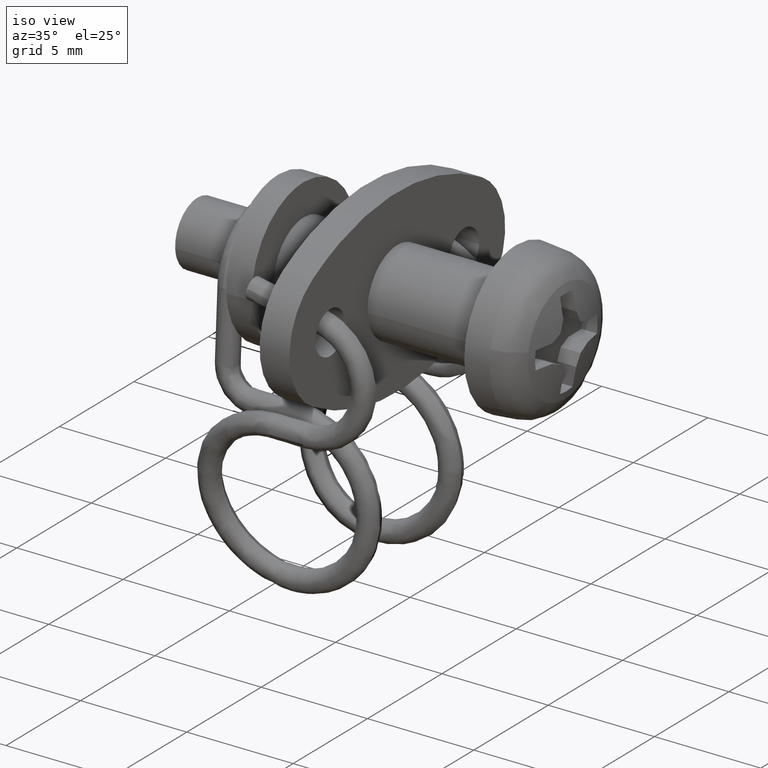
[diagram: clean part render]
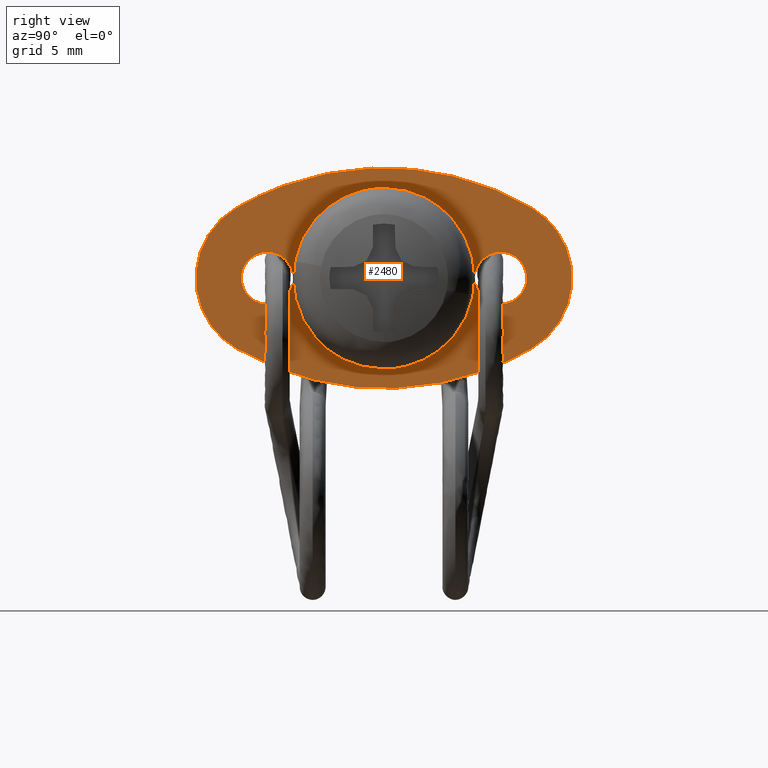
[diagram: tour spotlight — one face highlighted and labeled with its STEP entity id]
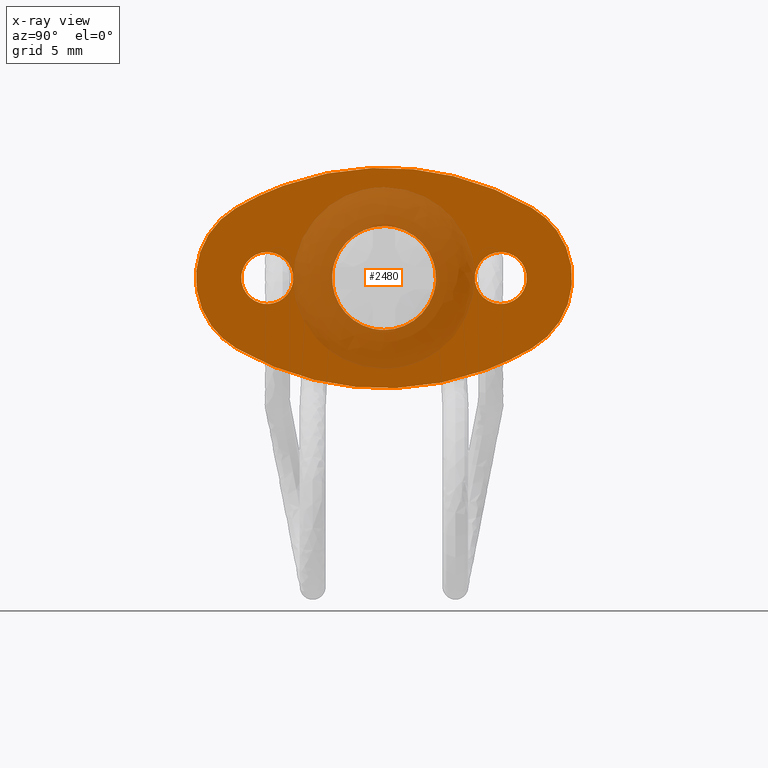
[diagram: x-ray of the same camera — body ghosted, this tour face saturated]
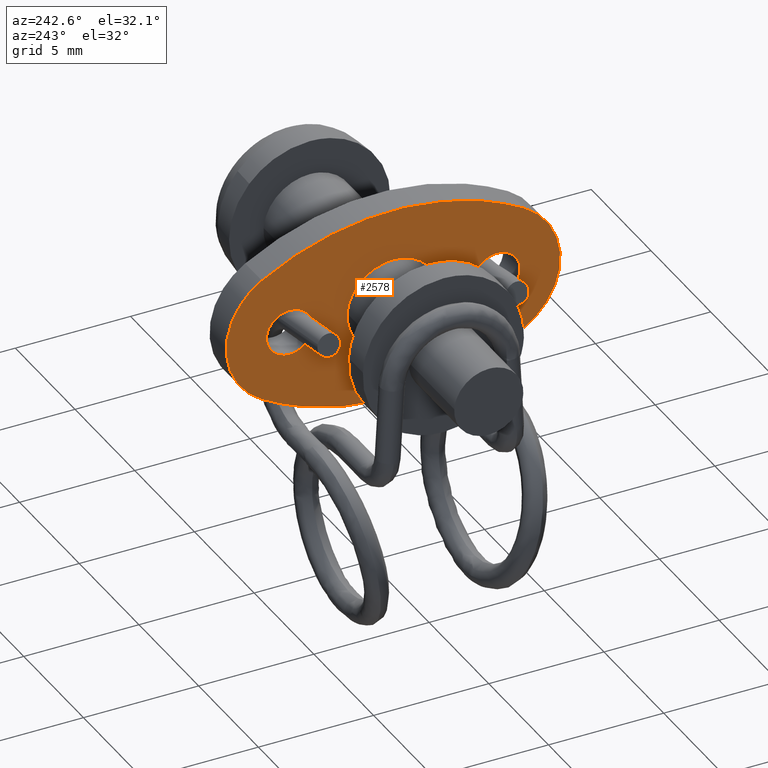
[diagram: tour spotlight — one face highlighted and labeled with its STEP entity id]
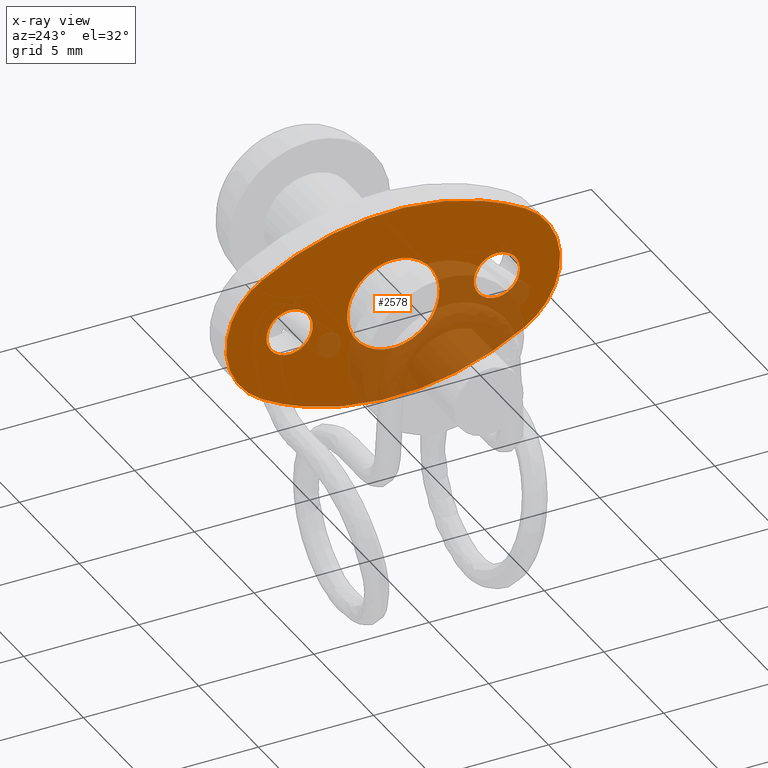
[diagram: x-ray of the same camera — body ghosted, this tour face saturated]
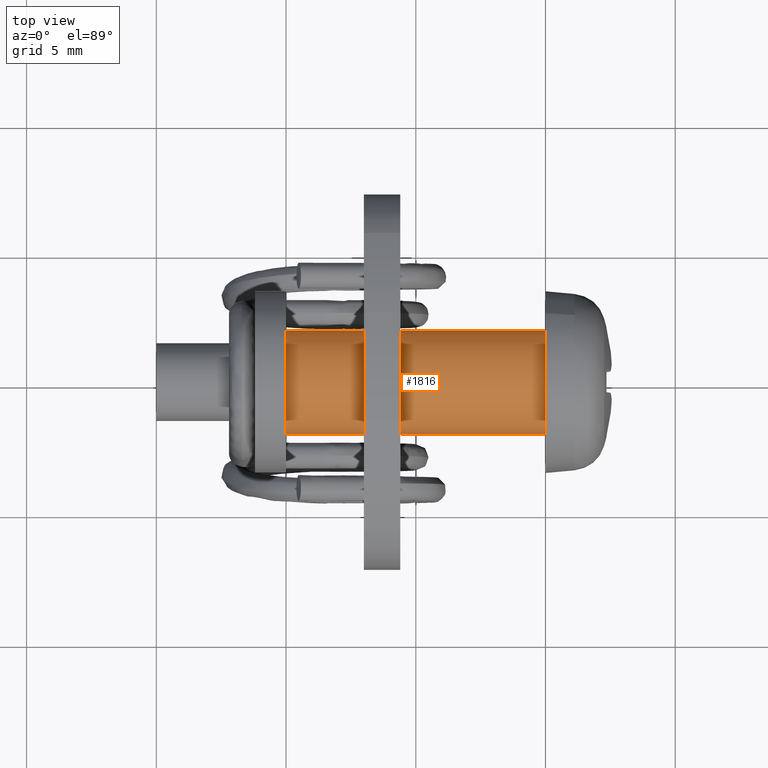
[diagram: tour spotlight — one face highlighted and labeled with its STEP entity id]
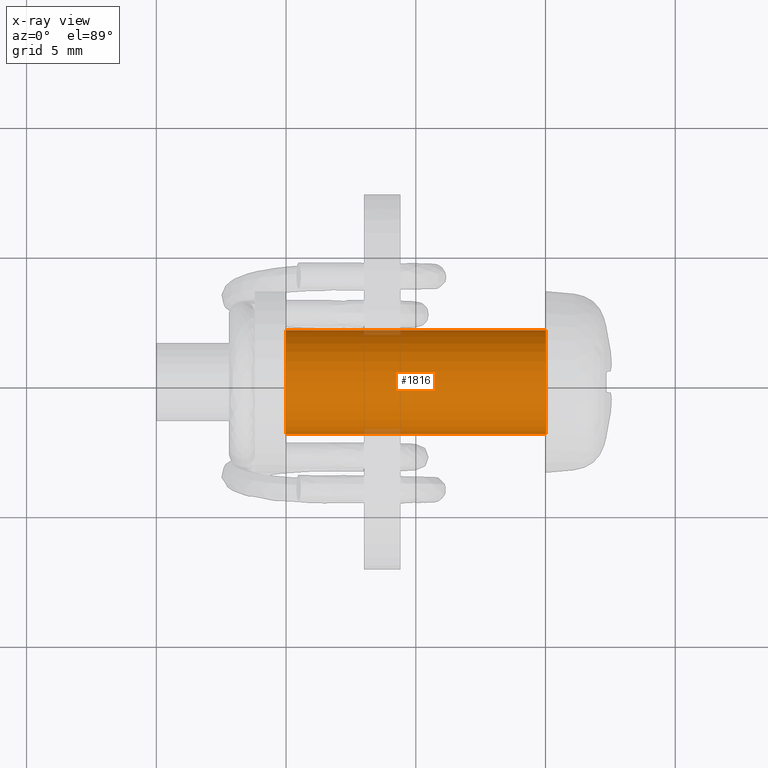
[diagram: x-ray of the same camera — body ghosted, this tour face saturated]
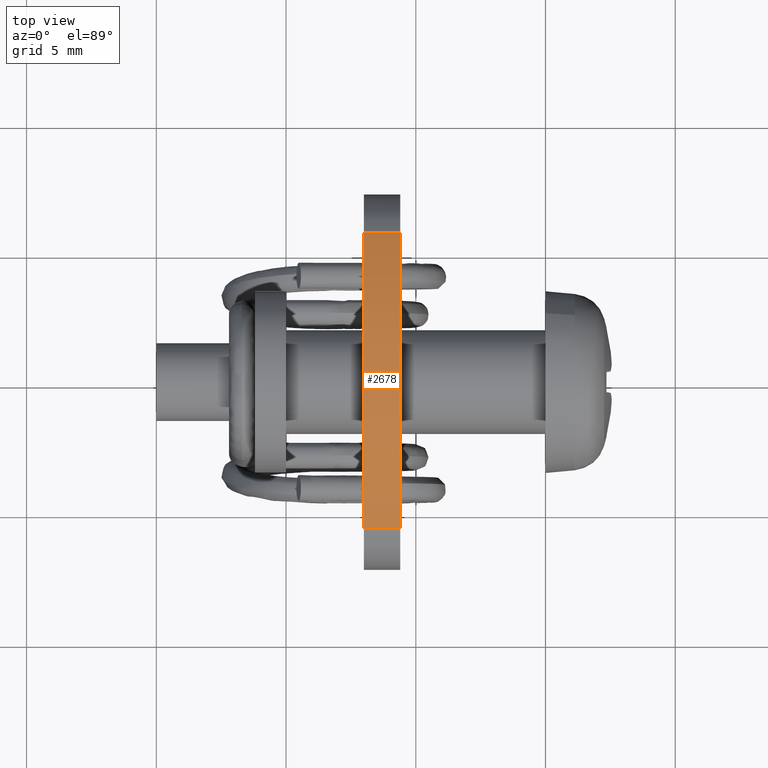
[diagram: tour spotlight — one face highlighted and labeled with its STEP entity id]
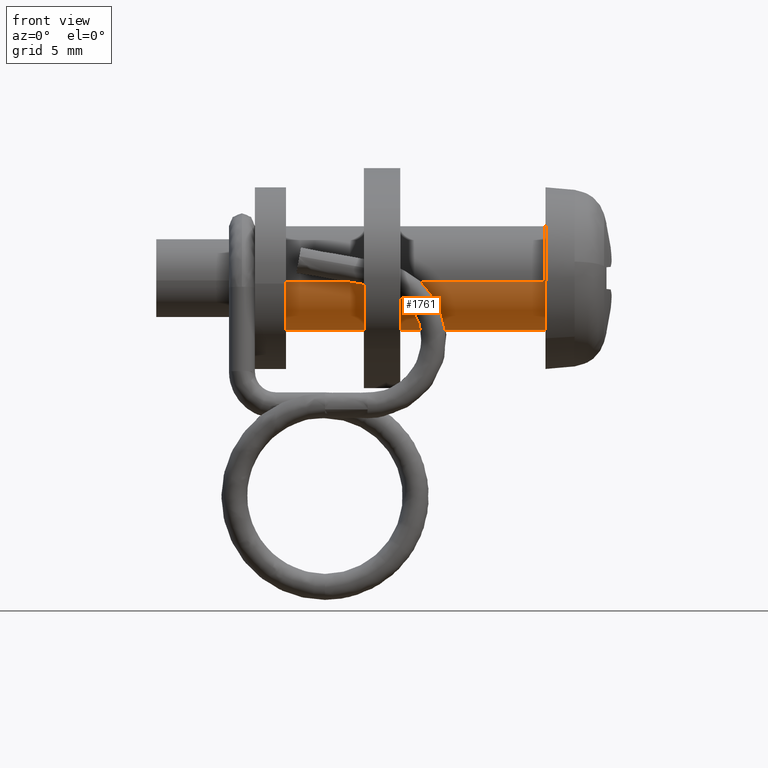
[diagram: tour spotlight — one face highlighted and labeled with its STEP entity id]
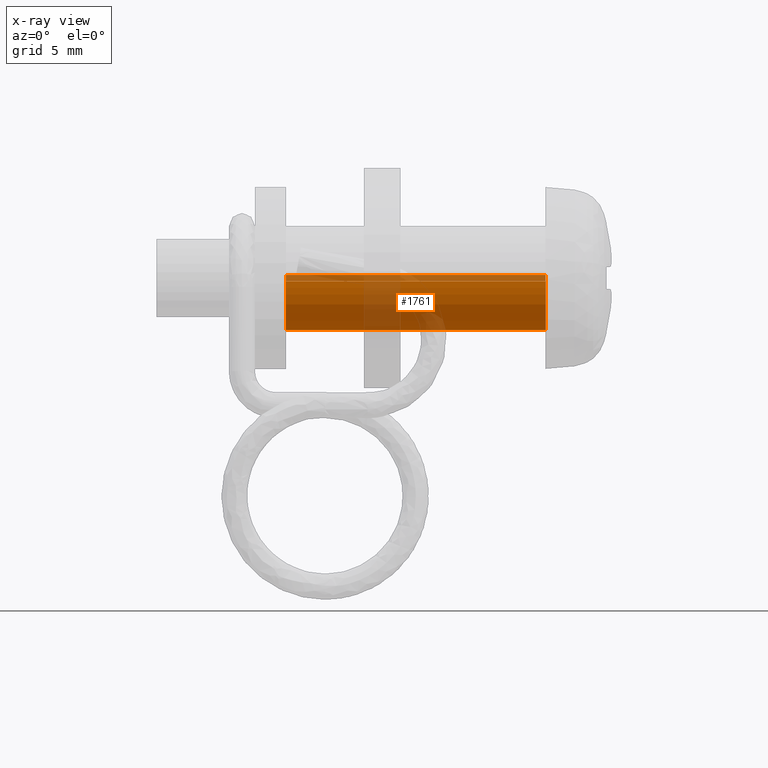
[diagram: x-ray of the same camera — body ghosted, this tour face saturated]
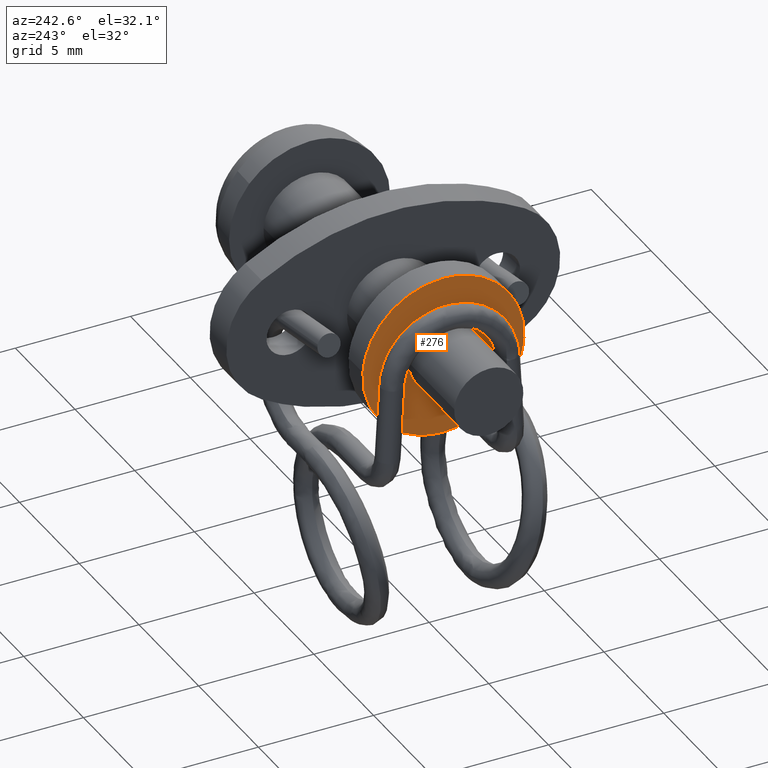
[diagram: tour spotlight — one face highlighted and labeled with its STEP entity id]
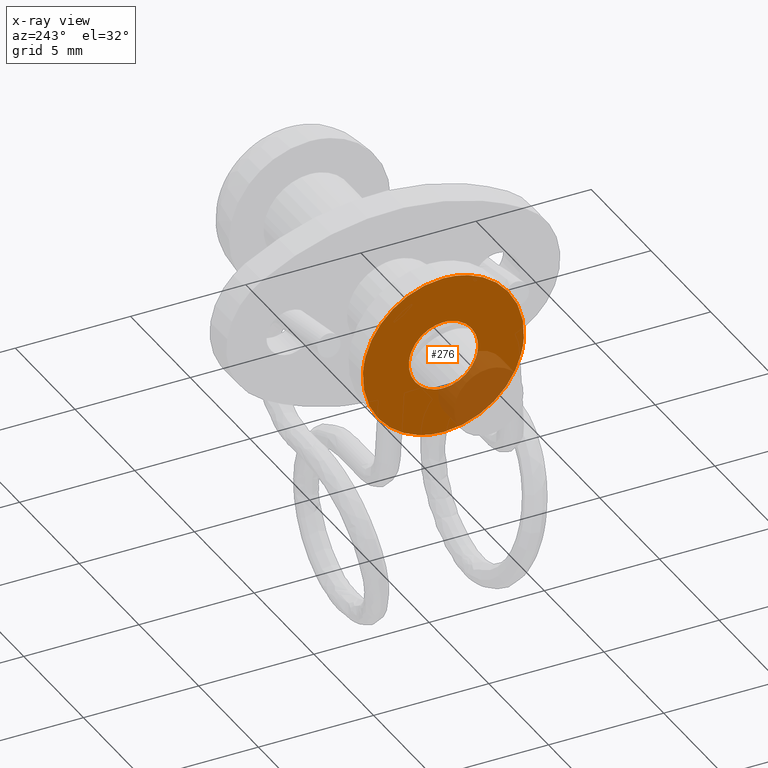
[diagram: x-ray of the same camera — body ghosted, this tour face saturated]
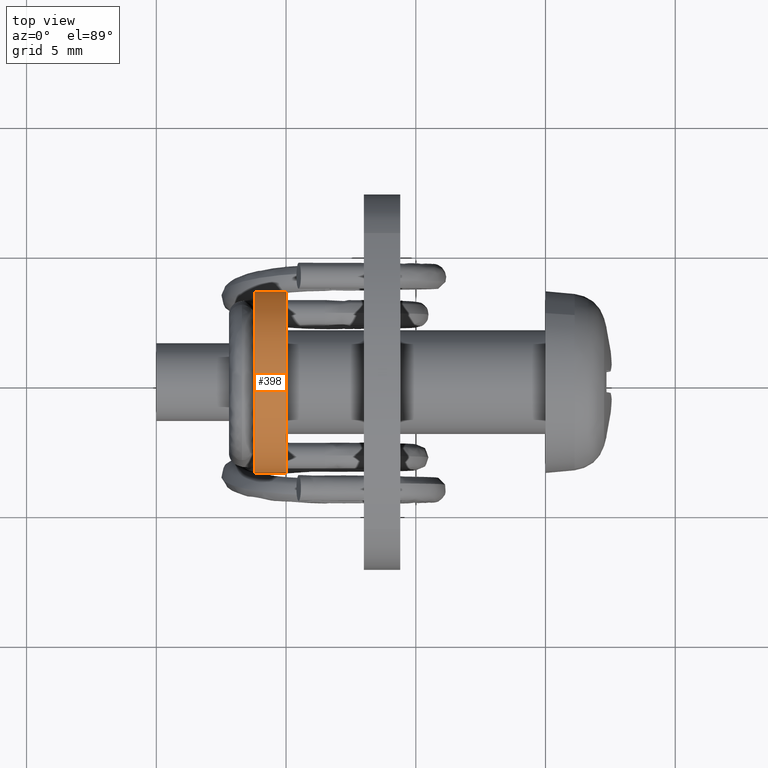
[diagram: tour spotlight — one face highlighted and labeled with its STEP entity id]
A machine part: a face-by-face anatomy tour. The part has 85 B-rep faces; the first image is the clean iso view, then the 7 largest visible faces are spotlighted one at a time (largest first), each with its STEP entity span.

Face 1 — right view, entity #2480. An x-ray twin of the same camera follows (body ghosted, this face saturated) — the face is partly hidden behind the body. In plain terms, the highlighted face is a freeform B-spline surface patch.
Definition (entity closure, byte-faithful):
#1855=CARTESIAN_POINT('',(-5.599999952316285,-5.498134798419658,0.061048539570971));
#1856=VERTEX_POINT('',#1855);
#1857=CARTESIAN_POINT('',(-5.599999952316283,-4.500000000000000,-1.0));
#1858=VERTEX_POINT('',#1857);
#1859=CARTESIAN_POINT('',(-5.599999952316282,-5.498134798419659,0.061048539570971));
#1860=CARTESIAN_POINT('',(-5.599999952316281,-5.500000000000000,0.030552763316696));
#1861=CARTESIAN_POINT('',(-5.599999952316283,-5.500000000000000,-2.220446E-016));
#1862=CARTESIAN_POINT('',(-5.599999952316283,-5.500000000000001,-1.000000000000000));
#1863=CARTESIAN_POINT('',(-5.599999952316283,-4.500000000000000,-1.0));
#1871=(BOUNDED_CURVE()B_SPLINE_CURVE(2,(#1859,#1860,#1861,#1862,#1863),.UNSPECIFIED.,.F.,.U.)B_SPLINE_CURVE_WITH_KNOTS((3,2,3),(0.239332962235725,0.250000000000000,0.500000000000000),.UNSPECIFIED.)CURVE()GEOMETRIC_REPRESENTATION_ITEM()RATIONAL_B_SPLINE_CURVE((0.976072041659822,0.987502787896068,1.0,0.707106781186548,1.0))REPRESENTATION_ITEM(''));
#1872=EDGE_CURVE('',#1856,#1858,#1871,.T.);
#1874=CARTESIAN_POINT('',(-5.599999952316283,-3.501865201580342,-0.061048539570972));
#1875=VERTEX_POINT('',#1874);
#1876=CARTESIAN_POINT('',(-5.599999952316283,-4.500000000000000,-1.0));
#1877=CARTESIAN_POINT('',(-5.599999952316283,-3.559293933128405,-1.000000000000000));
#1878=CARTESIAN_POINT('',(-5.599999952316283,-3.501865201580340,-0.061048539570972));
#1886=(BOUNDED_CURVE()B_SPLINE_CURVE(2,(#1876,#1877,#1878),.UNSPECIFIED.,.F.,.U.)B_SPLINE_CURVE_WITH_KNOTS((3,3),(0.500000000000000,0.739332962235725),.UNSPECIFIED.)CURVE()GEOMETRIC_REPRESENTATION_ITEM()RATIONAL_B_SPLINE_CURVE((1.0,0.719603993290480,0.976072041659822))REPRESENTATION_ITEM(''));
#1887=EDGE_CURVE('',#1858,#1875,#1886,.T.);
#1954=CARTESIAN_POINT('',(-5.599999952316283,-4.500000000000000,1.000000000000000));
#1955=VERTEX_POINT('',#1954);
#1956=CARTESIAN_POINT('',(-5.599999952316283,-4.500000000000000,1.000000000000000));
#1957=CARTESIAN_POINT('',(-5.599999952316283,-5.440706066871596,1.000000000000000));
#1958=CARTESIAN_POINT('',(-5.599999952316282,-5.498134798419659,0.061048539570971));
#1966=(BOUNDED_CURVE()B_SPLINE_CURVE(2,(#1956,#1957,#1958),.UNSPECIFIED.,.F.,.U.)B_SPLINE_CURVE_WITH_KNOTS((3,3),(0.0,0.239332962235725),.UNSPECIFIED.)CURVE()GEOMETRIC_REPRESENTATION_ITEM()RATIONAL_B_SPLINE_CURVE((1.0,0.719603993290480,0.976072041659822))REPRESENTATION_ITEM(''));
#1967=EDGE_CURVE('',#1955,#1856,#1966,.T.);
#2001=CARTESIAN_POINT('',(-5.599999952316283,-3.501865201580340,-0.061048539570972));
#2002=CARTESIAN_POINT('',(-5.599999952316280,-3.500000000000000,-0.030552763316697));
#2003=CARTESIAN_POINT('',(-5.599999952316283,-3.500000000000000,-2.220446E-016));
#2004=CARTESIAN_POINT('',(-5.599999952316283,-3.499999999999999,1.000000000000000));
#2005=CARTESIAN_POINT('',(-5.599999952316283,-4.500000000000000,1.000000000000000));
#2013=(BOUNDED_CURVE()B_SPLINE_CURVE(2,(#2001,#2002,#2003,#2004,#2005),.UNSPECIFIED.,.F.,.U.)B_SPLINE_CURVE_WITH_KNOTS((3,2,3),(0.739332962235725,0.750000000000000,1.0),.UNSPECIFIED.)CURVE()GEOMETRIC_REPRESENTATION_ITEM()RATIONAL_B_SPLINE_CURVE((0.976072041659822,0.987502787896068,1.0,0.707106781186548,1.0))REPRESENTATION_ITEM(''));
#2014=EDGE_CURVE('',#1875,#1955,#2013,.T.);
#2037=CARTESIAN_POINT('',(-5.599999952316283,3.501865201580342,0.061048539570972));
#2038=VERTEX_POINT('',#2037);
#2039=CARTESIAN_POINT('',(-5.599999952316283,4.500000000000000,-1.000000000000000));
#2040=VERTEX_POINT('',#2039);
#2041=CARTESIAN_POINT('',(-5.599999952316283,3.501865201580340,0.061048539570972));
#2042=CARTESIAN_POINT('',(-5.599999952316283,3.500000000000000,0.030552763316697));
#2043=CARTESIAN_POINT('',(-5.599999952316283,3.500000000000000,2.755364E-016));
#2044=CARTESIAN_POINT('',(-5.599999952316283,3.499999999999999,-1.000000000000000));
#2045=CARTESIAN_POINT('',(-5.599999952316283,4.500000000000000,-1.000000000000000));
#2053=(BOUNDED_CURVE()B_SPLINE_CURVE(2,(#2041,#2042,#2043,#2044,#2045),.UNSPECIFIED.,.F.,.U.)B_SPLINE_CURVE_WITH_KNOTS((3,2,3),(0.239332962235725,0.250000000000000,0.500000000000000),.UNSPECIFIED.)CURVE()GEOMETRIC_REPRESENTATION_ITEM()RATIONAL_B_SPLINE_CURVE((0.976072041659822,0.987502787896068,1.0,0.707106781186548,1.0))REPRESENTATION_ITEM(''));
#2054=EDGE_CURVE('',#2038,#2040,#2053,.T.);
#2056=CARTESIAN_POINT('',(-5.599999952316283,5.498134798419658,-0.061048539570971));
#2057=VERTEX_POINT('',#2056);
#2058=CARTESIAN_POINT('',(-5.599999952316283,4.500000000000000,-1.000000000000000));
#2059=CARTESIAN_POINT('',(-5.599999952316283,5.440706066871596,-1.000000000000000));
#2060=CARTESIAN_POINT('',(-5.599999952316283,5.498134798419658,-0.061048539570971));
#2068=(BOUNDED_CURVE()B_SPLINE_CURVE(2,(#2058,#2059,#2060),.UNSPECIFIED.,.F.,.U.)B_SPLINE_CURVE_WITH_KNOTS((3,3),(0.500000000000000,0.739332962235725),.UNSPECIFIED.)CURVE()GEOMETRIC_REPRESENTATION_ITEM()RATIONAL_B_SPLINE_CURVE((1.0,0.719603993290480,0.976072041659822))REPRESENTATION_ITEM(''));
#2069=EDGE_CURVE('',#2040,#2057,#2068,.T.);
#2136=CARTESIAN_POINT('',(-5.599999952316283,4.500000000000000,1.0));
#2137=VERTEX_POINT('',#2136);
#2138=CARTESIAN_POINT('',(-5.599999952316283,4.500000000000000,1.0));
#2139=CARTESIAN_POINT('',(-5.599999952316282,3.559293933128405,1.000000000000000));
#2140=CARTESIAN_POINT('',(-5.599999952316283,3.501865201580340,0.061048539570972));
#2148=(BOUNDED_CURVE()B_SPLINE_CURVE(2,(#2138,#2139,#2140),.UNSPECIFIED.,.F.,.U.)B_SPLINE_CURVE_WITH_KNOTS((3,3),(0.0,0.239332962235725),.UNSPECIFIED.)CURVE()GEOMETRIC_REPRESENTATION_ITEM()RATIONAL_B_SPLINE_CURVE((1.0,0.719603993290480,0.976072041659822))REPRESENTATION_ITEM(''));
#2149=EDGE_CURVE('',#2137,#2038,#2148,.T.);
#2183=CARTESIAN_POINT('',(-5.599999952316283,5.498134798419658,-0.061048539570971));
#2184=CARTESIAN_POINT('',(-5.599999952316285,5.500000000000000,-0.030552763316696));
#2185=CARTESIAN_POINT('',(-5.599999952316283,5.500000000000000,2.755364E-016));
#2186=CARTESIAN_POINT('',(-5.599999952316283,5.500000000000001,1.000000000000000));
#2187=CARTESIAN_POINT('',(-5.599999952316283,4.500000000000000,1.0));
#2195=(BOUNDED_CURVE()B_SPLINE_CURVE(2,(#2183,#2184,#2185,#2186,#2187),.UNSPECIFIED.,.F.,.U.)B_SPLINE_CURVE_WITH_KNOTS((3,2,3),(0.739332962235725,0.750000000000000,1.0),.UNSPECIFIED.)CURVE()GEOMETRIC_REPRESENTATION_ITEM()RATIONAL_B_SPLINE_CURVE((0.976072041659822,0.987502787896068,1.0,0.707106781186548,1.0))REPRESENTATION_ITEM(''));
#2196=EDGE_CURVE('',#2057,#2137,#2195,.T.);
#2219=CARTESIAN_POINT('',(-5.599999952316283,-1.996269596843025,0.122097079081309));
#2220=VERTEX_POINT('',#2219);
#2221=CARTESIAN_POINT('',(-5.599999952316283,0.0,-2.0));
#2222=VERTEX_POINT('',#2221);
#2223=CARTESIAN_POINT('',(-5.599999952316285,-1.996269596843025,0.122097079081309));
#2224=CARTESIAN_POINT('',(-5.599999952316283,-2.000000000000000,0.061105526602992));
#2225=CARTESIAN_POINT('',(-5.599999952316283,-2.0,0.0));
#2226=CARTESIAN_POINT('',(-5.599999952316283,-2.000000000000000,-2.000000000000000));
#2227=CARTESIAN_POINT('',(-5.599999952316283,0.0,-2.0));
#2235=(BOUNDED_CURVE()B_SPLINE_CURVE(2,(#2223,#2224,#2225,#2226,#2227),.UNSPECIFIED.,.F.,.U.)B_SPLINE_CURVE_WITH_KNOTS((3,2,3),(0.239332962240966,0.250000000000000,0.500000000000000),.UNSPECIFIED.)CURVE()GEOMETRIC_REPRESENTATION_ITEM()RATIONAL_B_SPLINE_CURVE((0.976072041671054,0.987502787902208,1.0,0.707106781186548,1.0))REPRESENTATION_ITEM(''));
#2236=EDGE_CURVE('',#2220,#2222,#2235,.T.);
#2238=CARTESIAN_POINT('',(-5.599999952316283,1.996269596843025,-0.122097079081309));
#2239=VERTEX_POINT('',#2238);
#2240=CARTESIAN_POINT('',(-5.599999952316283,0.0,-2.0));
#2241=CARTESIAN_POINT('',(-5.599999952316284,1.881412133800442,-2.000000000000000));
#2242=CARTESIAN_POINT('',(-5.599999952316283,1.996269596843025,-0.122097079081308));
#2250=(BOUNDED_CURVE()B_SPLINE_CURVE(2,(#2240,#2241,#2242),.UNSPECIFIED.,.F.,.U.)B_SPLINE_CURVE_WITH_KNOTS((3,3),(0.500000000000000,0.739332962240966),.UNSPECIFIED.)CURVE()GEOMETRIC_REPRESENTATION_ITEM()RATIONAL_B_SPLINE_CURVE((1.0,0.719603993284340,0.976072041671054))REPRESENTATION_ITEM(''));
#2251=EDGE_CURVE('',#2222,#2239,#2250,.T.);
#2318=CARTESIAN_POINT('',(-5.599999952316283,0.0,2.0));
#2319=VERTEX_POINT('',#2318);
#2320=CARTESIAN_POINT('',(-5.599999952316283,0.0,2.0));
#2321=CARTESIAN_POINT('',(-5.599999952316284,-1.881412133800442,2.000000000000000));
#2322=CARTESIAN_POINT('',(-5.599999952316285,-1.996269596843025,0.122097079081309));
#2330=(BOUNDED_CURVE()B_SPLINE_CURVE(2,(#2320,#2321,#2322),.UNSPECIFIED.,.F.,.U.)B_SPLINE_CURVE_WITH_KNOTS((3,3),(0.0,0.239332962240966),.UNSPECIFIED.)CURVE()GEOMETRIC_REPRESENTATION_ITEM()RATIONAL_B_SPLINE_CURVE((1.0,0.719603993284340,0.976072041671054))REPRESENTATION_ITEM(''));
#2331=EDGE_CURVE('',#2319,#2220,#2330,.T.);
#2365=CARTESIAN_POINT('',(-5.599999952316283,1.996269596843025,-0.122097079081308));
#2366=CARTESIAN_POINT('',(-5.599999952316282,2.000000000000000,-0.061105526602991));
#2367=CARTESIAN_POINT('',(-5.599999952316283,2.0,0.0));
#2368=CARTESIAN_POINT('',(-5.599999952316283,2.000000000000000,2.000000000000000));
#2369=CARTESIAN_POINT('',(-5.599999952316283,0.0,2.0));
#2377=(BOUNDED_CURVE()B_SPLINE_CURVE(2,(#2365,#2366,#2367,#2368,#2369),.UNSPECIFIED.,.F.,.U.)B_SPLINE_CURVE_WITH_KNOTS((3,2,3),(0.739332962240966,0.750000000000000,1.0),.UNSPECIFIED.)CURVE()GEOMETRIC_REPRESENTATION_ITEM()RATIONAL_B_SPLINE_CURVE((0.976072041671054,0.987502787902208,1.0,0.707106781186548,1.0))REPRESENTATION_ITEM(''));
#2378=EDGE_CURVE('',#2239,#2319,#2377,.T.);
#2383=CARTESIAN_POINT('',(-5.599999952316283,-7.974274971896247,4.674574983525359));
#2384=CARTESIAN_POINT('',(-5.599999952316283,7.974275360816432,4.674574983525359));
#2385=CARTESIAN_POINT('',(-5.599999952316283,-7.974274971896247,-4.674575211513135));
#2386=CARTESIAN_POINT('',(-5.599999952316283,7.974275360816432,-4.674575211513135));
#2387=B_SPLINE_SURFACE_WITH_KNOTS('',1,1,((#2383,#2385),(#2384,#2386)),.UNSPECIFIED.,.F.,.F.,.U.,(2,2),(2,2),(0.0,15.948550332712680),(0.0,9.349150195038494),.UNSPECIFIED.);
#2388=CARTESIAN_POINT('',(-5.599999952316283,5.701934078492810,2.701934078492970));
#2389=VERTEX_POINT('',#2388);
#2390=CARTESIAN_POINT('',(-5.599999952316283,-5.701934078493020,2.701934078492915));
#2391=VERTEX_POINT('',#2390);
#2392=CARTESIAN_POINT('',(-5.599999952316283,5.701934078492812,2.701934078492976));
#2393=CARTESIAN_POINT('',(-5.599999952316283,-1.222356E-013,6.044447158988811));
#2394=CARTESIAN_POINT('',(-5.599999952316283,-5.701934078492934,2.701934078492771));
#2402=(BOUNDED_CURVE()B_SPLINE_CURVE(2,(#2392,#2393,#2394),.UNSPECIFIED.,.F.,.U.)CURVE()GEOMETRIC_REPRESENTATION_ITEM()QUASI_UNIFORM_CURVE()RATIONAL_B_SPLINE_CURVE((1.0,0.862697970097650,1.0))REPRESENTATION_ITEM(''));
#2403=EDGE_CURVE('',#2389,#2391,#2402,.T.);
#2404=ORIENTED_EDGE('',*,*,#2403,.T.);
#2405=CARTESIAN_POINT('',(-5.599999952316283,-5.701934078493020,-2.701934078492886));
#2406=VERTEX_POINT('',#2405);
#2407=CARTESIAN_POINT('',(-5.599999952316283,-5.701934078493020,2.701934078492915));
#2408=CARTESIAN_POINT('',(-5.599999952316264,-5.899643179824546,2.586081153045170));
#2409=CARTESIAN_POINT('',(-5.599999952316336,-6.228344868345000,2.341288975547610));
#2410=CARTESIAN_POINT('',(-5.599999952316216,-6.582768869412232,1.949761225480772));
#2411=CARTESIAN_POINT('',(-5.599999952316352,-6.839481617332238,1.569198440501610));
#2412=CARTESIAN_POINT('',(-5.599999952316226,-7.043283472402441,1.157170477952836));
#2413=CARTESIAN_POINT('',(-5.599999952316372,-7.185247298931552,0.692854783877480));
#2414=CARTESIAN_POINT('',(-5.599999952316171,-7.247956202095076,0.254938057835331));
#2415=CARTESIAN_POINT('',(-5.599999952316431,-7.255577883005251,-0.212546770712485));
#2416=CARTESIAN_POINT('',(-5.599999952315990,-7.188621295807101,-0.693979470350960));
#2417=CARTESIAN_POINT('',(-5.599999952316633,-7.031338564244669,-1.179911260550198));
#2418=CARTESIAN_POINT('',(-5.599999952316241,-6.831441513524635,-1.584073386490079));
#2419=CARTESIAN_POINT('',(-5.599999952316265,-6.596909448183087,-1.928704035686930));
#2420=CARTESIAN_POINT('',(-5.599999952316283,-6.240658022342213,-2.328763656274262));
#2421=CARTESIAN_POINT('',(-5.599999952316328,-5.928951341563137,-2.568935665225951));
#2422=CARTESIAN_POINT('',(-5.599999952316283,-5.701934078493020,-2.701934078492886));
#2423=B_SPLINE_CURVE_WITH_KNOTS('',3,(#2407,#2408,#2409,#2410,#2411,#2412,#2413,#2414,#2415,#2416,#2417,#2418,#2419,#2420,#2421,#2422),.UNSPECIFIED.,.F.,.U.,(4,1,1,1,1,1,1,1,1,1,1,1,1,4),(0.000000018007002,0.687452152790725,1.222146270789255,1.578609269900374,2.062379650466239,2.597073563317234,3.029917437255494,3.386370610423167,3.997439682581633,4.481212858679493,4.914057551206293,5.346903781993333,5.728828982896050,6.518127780283884),.UNSPECIFIED.);
#2424=EDGE_CURVE('',#2391,#2406,#2423,.T.);
#2425=ORIENTED_EDGE('',*,*,#2424,.T.);
#2426=CARTESIAN_POINT('',(-5.599999952316283,5.701934078492821,-2.701934078492950));
#2427=VERTEX_POINT('',#2426);
#2428=CARTESIAN_POINT('',(-5.599999952316283,-5.701934078493020,-2.701934078492886));
#2429=CARTESIAN_POINT('',(-5.599999952316283,-1.231029E-013,-6.044447158988782));
#2430=CARTESIAN_POINT('',(-5.599999952316283,5.701934078492812,-2.701934078492946));
#2438=(BOUNDED_CURVE()B_SPLINE_CURVE(2,(#2428,#2429,#2430),.UNSPECIFIED.,.F.,.U.)CURVE()GEOMETRIC_REPRESENTATION_ITEM()QUASI_UNIFORM_CURVE()RATIONAL_B_SPLINE_CURVE((1.0,0.862697970097650,1.0))REPRESENTATION_ITEM(''));
#2439=EDGE_CURVE('',#2406,#2427,#2438,.T.);
#2440=ORIENTED_EDGE('',*,*,#2439,.T.);
#2441=CARTESIAN_POINT('',(-5.599999952316283,5.701934078492821,-2.701934078492950));
#2442=CARTESIAN_POINT('',(-5.599999952316288,5.928959254187077,-2.568944599910862));
#2443=CARTESIAN_POINT('',(-5.599999952316319,6.233870494041635,-2.333974126418547));
#2444=CARTESIAN_POINT('',(-5.599999952316219,6.620081475519075,-1.903854988970863));
#2445=CARTESIAN_POINT('',(-5.599999952316484,6.882193839053443,-1.504897097301899));
#2446=CARTESIAN_POINT('',(-5.599999952316015,7.086025256517341,-1.036578742850630));
#2447=CARTESIAN_POINT('',(-5.599999952316590,7.210795186674461,-0.567835093708365));
#2448=CARTESIAN_POINT('',(-5.599999952316098,7.266499295370216,-0.042839800459955));
#2449=CARTESIAN_POINT('',(-5.599999952316068,7.228479131187265,0.475946169831520));
#2450=CARTESIAN_POINT('',(-5.599999952316777,7.117308020214599,0.930454280948196));
#2451=CARTESIAN_POINT('',(-5.599999952315693,6.953114330543750,1.359138376162381));
#2452=CARTESIAN_POINT('',(-5.599999952316324,6.725903757981546,1.759464978863148));
#2453=CARTESIAN_POINT('',(-5.599999952316486,6.448124901667700,2.103770653202327));
#2454=CARTESIAN_POINT('',(-5.599999952315617,6.126103480022212,2.418605372437320));
#2455=CARTESIAN_POINT('',(-5.599999952317443,5.877671801947164,2.598944830696294));
#2456=CARTESIAN_POINT('',(-5.599999952316283,5.701934078492810,2.701934078492970));
#2457=B_SPLINE_CURVE_WITH_KNOTS('',3,(#2441,#2442,#2443,#2444,#2445,#2446,#2447,#2448,#2449,#2450,#2451,#2452,#2453,#2454,#2455,#2456),.UNSPECIFIED.,.F.,.U.,(4,1,1,1,1,1,1,1,1,1,1,1,1,4),(0.000000018008257,0.789298699251638,1.145763064947658,1.731378658774104,2.215145967850596,2.673455845780520,3.182689632986555,3.793746445224218,4.226593793611222,4.583058635338718,5.168673847060947,5.601521247549764,5.907057148070099,6.518127780284098),.UNSPECIFIED.);
#2458=EDGE_CURVE('',#2427,#2389,#2457,.T.);
#2459=ORIENTED_EDGE('',*,*,#2458,.T.);
#2460=EDGE_LOOP('',(#2404,#2425,#2440,#2459));
#2461=FACE_OUTER_BOUND('',#2460,.T.);
#2462=ORIENTED_EDGE('',*,*,#2251,.F.);
#2463=ORIENTED_EDGE('',*,*,#2236,.F.);
#2464=ORIENTED_EDGE('',*,*,#2331,.F.);
#2465=ORIENTED_EDGE('',*,*,#2378,.F.);
#2466=EDGE_LOOP('',(#2462,#2463,#2464,#2465));
#2467=FACE_BOUND('',#2466,.T.);
#2468=ORIENTED_EDGE('',*,*,#2069,.F.);
#2469=ORIENTED_EDGE('',*,*,#2054,.F.);
#2470=ORIENTED_EDGE('',*,*,#2149,.F.);
#2471=ORIENTED_EDGE('',*,*,#2196,.F.);
#2472=EDGE_LOOP('',(#2468,#2469,#2470,#2471));
#2473=FACE_BOUND('',#2472,.T.);
#2474=ORIENTED_EDGE('',*,*,#1887,.F.);
#2475=ORIENTED_EDGE('',*,*,#1872,.F.);
#2476=ORIENTED_EDGE('',*,*,#1967,.F.);
#2477=ORIENTED_EDGE('',*,*,#2014,.F.);
#2478=EDGE_LOOP('',(#2474,#2475,#2476,#2477));
#2479=FACE_BOUND('',#2478,.T.);
#2480=ADVANCED_FACE('',(#2461,#2467,#2473,#2479),#2387,.F.);

Face 2 — auxiliary view, entity #2578. An x-ray twin of the same camera follows (body ghosted, this face saturated) — the face is partly hidden behind the body. In plain terms, the highlighted face is a freeform B-spline surface patch.
Definition (entity closure, byte-faithful):
#1889=CARTESIAN_POINT('',(-6.999999952316284,-3.501865201580342,-0.061048539570972));
#1890=VERTEX_POINT('',#1889);
#1896=CARTESIAN_POINT('',(-6.999999952316284,-4.500000000000000,-1.0));
#1897=VERTEX_POINT('',#1896);
#1898=CARTESIAN_POINT('',(-6.999999952316284,-4.500000000000000,-1.0));
#1899=CARTESIAN_POINT('',(-6.999999952316284,-3.559293933128405,-1.000000000000000));
#1900=CARTESIAN_POINT('',(-6.999999952316284,-3.501865201580340,-0.061048539570972));
#1908=(BOUNDED_CURVE()B_SPLINE_CURVE(2,(#1898,#1899,#1900),.UNSPECIFIED.,.F.,.U.)B_SPLINE_CURVE_WITH_KNOTS((3,3),(0.500000000000000,0.739332962235725),.UNSPECIFIED.)CURVE()GEOMETRIC_REPRESENTATION_ITEM()RATIONAL_B_SPLINE_CURVE((1.0,0.719603993290480,0.976072041659822))REPRESENTATION_ITEM(''));
#1909=EDGE_CURVE('',#1897,#1890,#1908,.T.);
#1911=CARTESIAN_POINT('',(-6.999999952316284,-5.498134798419658,0.061048539570971));
#1912=VERTEX_POINT('',#1911);
#1913=CARTESIAN_POINT('',(-6.999999952316284,-5.498134798419660,0.061048539570971));
#1914=CARTESIAN_POINT('',(-6.999999952316285,-5.500000000000001,0.030552763316697));
#1915=CARTESIAN_POINT('',(-6.999999952316284,-5.500000000000000,-2.220446E-016));
#1916=CARTESIAN_POINT('',(-6.999999952316284,-5.500000000000001,-1.000000000000000));
#1917=CARTESIAN_POINT('',(-6.999999952316284,-4.500000000000000,-1.0));
#1925=(BOUNDED_CURVE()B_SPLINE_CURVE(2,(#1913,#1914,#1915,#1916,#1917),.UNSPECIFIED.,.F.,.U.)B_SPLINE_CURVE_WITH_KNOTS((3,2,3),(0.239332962235725,0.250000000000000,0.500000000000000),.UNSPECIFIED.)CURVE()GEOMETRIC_REPRESENTATION_ITEM()RATIONAL_B_SPLINE_CURVE((0.976072041659822,0.987502787896068,1.0,0.707106781186548,1.0))REPRESENTATION_ITEM(''));
#1926=EDGE_CURVE('',#1912,#1897,#1925,.T.);
#1970=CARTESIAN_POINT('',(-6.999999952316284,-4.500000000000000,1.000000000000000));
#1971=VERTEX_POINT('',#1970);
#1972=CARTESIAN_POINT('',(-6.999999952316284,-4.500000000000000,1.000000000000000));
#1973=CARTESIAN_POINT('',(-6.999999952316284,-5.440706066871595,1.000000000000000));
#1974=CARTESIAN_POINT('',(-6.999999952316284,-5.498134798419660,0.061048539570971));
#1982=(BOUNDED_CURVE()B_SPLINE_CURVE(2,(#1972,#1973,#1974),.UNSPECIFIED.,.F.,.U.)B_SPLINE_CURVE_WITH_KNOTS((3,3),(0.0,0.239332962235725),.UNSPECIFIED.)CURVE()GEOMETRIC_REPRESENTATION_ITEM()RATIONAL_B_SPLINE_CURVE((1.0,0.719603993290480,0.976072041659822))REPRESENTATION_ITEM(''));
#1983=EDGE_CURVE('',#1971,#1912,#1982,.T.);
#1985=CARTESIAN_POINT('',(-6.999999952316284,-3.501865201580340,-0.061048539570972));
#1986=CARTESIAN_POINT('',(-6.999999952316285,-3.500000000000000,-0.030552763316697));
#1987=CARTESIAN_POINT('',(-6.999999952316284,-3.500000000000000,-2.220446E-016));
#1988=CARTESIAN_POINT('',(-6.999999952316284,-3.499999999999999,1.000000000000000));
#1989=CARTESIAN_POINT('',(-6.999999952316284,-4.500000000000000,1.000000000000000));
#1997=(BOUNDED_CURVE()B_SPLINE_CURVE(2,(#1985,#1986,#1987,#1988,#1989),.UNSPECIFIED.,.F.,.U.)B_SPLINE_CURVE_WITH_KNOTS((3,2,3),(0.739332962235725,0.750000000000000,1.0),.UNSPECIFIED.)CURVE()GEOMETRIC_REPRESENTATION_ITEM()RATIONAL_B_SPLINE_CURVE((0.976072041659822,0.987502787896068,1.0,0.707106781186548,1.0))REPRESENTATION_ITEM(''));
#1998=EDGE_CURVE('',#1890,#1971,#1997,.T.);
#2071=CARTESIAN_POINT('',(-6.999999952316284,5.498134798419658,-0.061048539570971));
#2072=VERTEX_POINT('',#2071);
#2078=CARTESIAN_POINT('',(-6.999999952316284,4.500000000000000,-1.000000000000000));
#2079=VERTEX_POINT('',#2078);
#2080=CARTESIAN_POINT('',(-6.999999952316284,4.500000000000000,-1.000000000000000));
#2081=CARTESIAN_POINT('',(-6.999999952316283,5.440706066871596,-1.000000000000000));
#2082=CARTESIAN_POINT('',(-6.999999952316284,5.498134798419658,-0.061048539570971));
#2090=(BOUNDED_CURVE()B_SPLINE_CURVE(2,(#2080,#2081,#2082),.UNSPECIFIED.,.F.,.U.)B_SPLINE_CURVE_WITH_KNOTS((3,3),(0.500000000000000,0.739332962235725),.UNSPECIFIED.)CURVE()GEOMETRIC_REPRESENTATION_ITEM()RATIONAL_B_SPLINE_CURVE((1.0,0.719603993290480,0.976072041659822))REPRESENTATION_ITEM(''));
#2091=EDGE_CURVE('',#2079,#2072,#2090,.T.);
#2093=CARTESIAN_POINT('',(-6.999999952316284,3.501865201580342,0.061048539570972));
#2094=VERTEX_POINT('',#2093);
#2095=CARTESIAN_POINT('',(-6.999999952316282,3.501865201580340,0.061048539570972));
#2096=CARTESIAN_POINT('',(-6.999999952316281,3.500000000000000,0.030552763316697));
#2097=CARTESIAN_POINT('',(-6.999999952316284,3.500000000000000,2.755364E-016));
#2098=CARTESIAN_POINT('',(-6.999999952316284,3.499999999999999,-1.000000000000000));
#2099=CARTESIAN_POINT('',(-6.999999952316284,4.500000000000000,-1.000000000000000));
#2107=(BOUNDED_CURVE()B_SPLINE_CURVE(2,(#2095,#2096,#2097,#2098,#2099),.UNSPECIFIED.,.F.,.U.)B_SPLINE_CURVE_WITH_KNOTS((3,2,3),(0.239332962235725,0.250000000000000,0.500000000000000),.UNSPECIFIED.)CURVE()GEOMETRIC_REPRESENTATION_ITEM()RATIONAL_B_SPLINE_CURVE((0.976072041659822,0.987502787896068,1.0,0.707106781186548,1.0))REPRESENTATION_ITEM(''));
#2108=EDGE_CURVE('',#2094,#2079,#2107,.T.);
#2152=CARTESIAN_POINT('',(-6.999999952316284,4.500000000000000,1.0));
#2153=VERTEX_POINT('',#2152);
#2154=CARTESIAN_POINT('',(-6.999999952316284,4.500000000000000,1.0));
#2155=CARTESIAN_POINT('',(-6.999999952316282,3.559293933128405,1.000000000000000));
#2156=CARTESIAN_POINT('',(-6.999999952316282,3.501865201580340,0.061048539570972));
#2164=(BOUNDED_CURVE()B_SPLINE_CURVE(2,(#2154,#2155,#2156),.UNSPECIFIED.,.F.,.U.)B_SPLINE_CURVE_WITH_KNOTS((3,3),(0.0,0.239332962235725),.UNSPECIFIED.)CURVE()GEOMETRIC_REPRESENTATION_ITEM()RATIONAL_B_SPLINE_CURVE((1.0,0.719603993290480,0.976072041659822))REPRESENTATION_ITEM(''));
#2165=EDGE_CURVE('',#2153,#2094,#2164,.T.);
#2167=CARTESIAN_POINT('',(-6.999999952316284,5.498134798419658,-0.061048539570971));
#2168=CARTESIAN_POINT('',(-6.999999952316284,5.500000000000000,-0.030552763316696));
#2169=CARTESIAN_POINT('',(-6.999999952316284,5.500000000000000,2.755364E-016));
#2170=CARTESIAN_POINT('',(-6.999999952316284,5.500000000000001,1.000000000000000));
#2171=CARTESIAN_POINT('',(-6.999999952316284,4.500000000000000,1.0));
#2179=(BOUNDED_CURVE()B_SPLINE_CURVE(2,(#2167,#2168,#2169,#2170,#2171),.UNSPECIFIED.,.F.,.U.)B_SPLINE_CURVE_WITH_KNOTS((3,2,3),(0.739332962235725,0.750000000000000,1.0),.UNSPECIFIED.)CURVE()GEOMETRIC_REPRESENTATION_ITEM()RATIONAL_B_SPLINE_CURVE((0.976072041659822,0.987502787896068,1.0,0.707106781186548,1.0))REPRESENTATION_ITEM(''));
#2180=EDGE_CURVE('',#2072,#2153,#2179,.T.);
#2253=CARTESIAN_POINT('',(-6.999999952316284,1.996269596843025,-0.122097079081309));
#2254=VERTEX_POINT('',#2253);
#2260=CARTESIAN_POINT('',(-6.999999952316284,0.0,-2.0));
#2261=VERTEX_POINT('',#2260);
#2262=CARTESIAN_POINT('',(-6.999999952316284,0.0,-2.0));
#2263=CARTESIAN_POINT('',(-6.999999952316284,1.881412133800442,-2.000000000000000));
#2264=CARTESIAN_POINT('',(-6.999999952316284,1.996269596843025,-0.122097079081308));
#2272=(BOUNDED_CURVE()B_SPLINE_CURVE(2,(#2262,#2263,#2264),.UNSPECIFIED.,.F.,.U.)B_SPLINE_CURVE_WITH_KNOTS((3,3),(0.500000000000000,0.739332962240966),.UNSPECIFIED.)CURVE()GEOMETRIC_REPRESENTATION_ITEM()RATIONAL_B_SPLINE_CURVE((1.0,0.719603993284340,0.976072041671054))REPRESENTATION_ITEM(''));
#2273=EDGE_CURVE('',#2261,#2254,#2272,.T.);
#2275=CARTESIAN_POINT('',(-6.999999952316285,-1.996269596843025,0.122097079081309));
#2276=VERTEX_POINT('',#2275);
#2277=CARTESIAN_POINT('',(-6.999999952316285,-1.996269596843025,0.122097079081309));
#2278=CARTESIAN_POINT('',(-6.999999952316284,-2.000000000000000,0.061105526602992));
#2279=CARTESIAN_POINT('',(-6.999999952316284,-2.0,0.0));
#2280=CARTESIAN_POINT('',(-6.999999952316284,-2.000000000000000,-2.000000000000000));
#2281=CARTESIAN_POINT('',(-6.999999952316284,0.0,-2.0));
#2289=(BOUNDED_CURVE()B_SPLINE_CURVE(2,(#2277,#2278,#2279,#2280,#2281),.UNSPECIFIED.,.F.,.U.)B_SPLINE_CURVE_WITH_KNOTS((3,2,3),(0.239332962240966,0.250000000000000,0.500000000000000),.UNSPECIFIED.)CURVE()GEOMETRIC_REPRESENTATION_ITEM()RATIONAL_B_SPLINE_CURVE((0.976072041671054,0.987502787902208,1.0,0.707106781186548,1.0))REPRESENTATION_ITEM(''));
#2290=EDGE_CURVE('',#2276,#2261,#2289,.T.);
#2334=CARTESIAN_POINT('',(-6.999999952316284,0.0,2.0));
#2335=VERTEX_POINT('',#2334);
#2336=CARTESIAN_POINT('',(-6.999999952316284,0.0,2.0));
#2337=CARTESIAN_POINT('',(-6.999999952316284,-1.881412133800442,2.000000000000000));
#2338=CARTESIAN_POINT('',(-6.999999952316285,-1.996269596843025,0.122097079081309));
#2346=(BOUNDED_CURVE()B_SPLINE_CURVE(2,(#2336,#2337,#2338),.UNSPECIFIED.,.F.,.U.)B_SPLINE_CURVE_WITH_KNOTS((3,3),(0.0,0.239332962240966),.UNSPECIFIED.)CURVE()GEOMETRIC_REPRESENTATION_ITEM()RATIONAL_B_SPLINE_CURVE((1.0,0.719603993284340,0.976072041671054))REPRESENTATION_ITEM(''));
#2347=EDGE_CURVE('',#2335,#2276,#2346,.T.);
#2349=CARTESIAN_POINT('',(-6.999999952316284,1.996269596843025,-0.122097079081308));
#2350=CARTESIAN_POINT('',(-6.999999952316284,2.000000000000000,-0.061105526602991));
#2351=CARTESIAN_POINT('',(-6.999999952316284,2.0,0.0));
#2352=CARTESIAN_POINT('',(-6.999999952316284,2.000000000000000,2.000000000000000));
#2353=CARTESIAN_POINT('',(-6.999999952316284,0.0,2.0));
#2361=(BOUNDED_CURVE()B_SPLINE_CURVE(2,(#2349,#2350,#2351,#2352,#2353),.UNSPECIFIED.,.F.,.U.)B_SPLINE_CURVE_WITH_KNOTS((3,2,3),(0.739332962240966,0.750000000000000,1.0),.UNSPECIFIED.)CURVE()GEOMETRIC_REPRESENTATION_ITEM()RATIONAL_B_SPLINE_CURVE((0.976072041671054,0.987502787902208,1.0,0.707106781186548,1.0))REPRESENTATION_ITEM(''));
#2362=EDGE_CURVE('',#2254,#2335,#2361,.T.);
#2481=CARTESIAN_POINT('',(-6.999999952316284,-7.974274971896247,4.674574983525359));
#2482=CARTESIAN_POINT('',(-6.999999952316284,7.974275360816432,4.674574983525359));
#2483=CARTESIAN_POINT('',(-6.999999952316284,-7.974274971896247,-4.674575211513135));
#2484=CARTESIAN_POINT('',(-6.999999952316284,7.974275360816432,-4.674575211513135));
#2485=B_SPLINE_SURFACE_WITH_KNOTS('',1,1,((#2481,#2483),(#2482,#2484)),.UNSPECIFIED.,.F.,.F.,.U.,(2,2),(2,2),(0.0,15.948550332712680),(0.0,9.349150195038494),.UNSPECIFIED.);
#2486=CARTESIAN_POINT('',(-6.999999952316284,5.701934078492810,2.701934078492970));
#2487=VERTEX_POINT('',#2486);
#2488=CARTESIAN_POINT('',(-6.999999952316284,-5.701934078493020,2.701934078492915));
#2489=VERTEX_POINT('',#2488);
#2490=CARTESIAN_POINT('',(-6.999999952316284,5.701934078492812,2.701934078492976));
#2491=CARTESIAN_POINT('',(-6.999999952316284,-1.222356E-013,6.044447158988811));
#2492=CARTESIAN_POINT('',(-6.999999952316284,-5.701934078492934,2.701934078492771));
#2500=(BOUNDED_CURVE()B_SPLINE_CURVE(2,(#2490,#2491,#2492),.UNSPECIFIED.,.F.,.U.)CURVE()GEOMETRIC_REPRESENTATION_ITEM()QUASI_UNIFORM_CURVE()RATIONAL_B_SPLINE_CURVE((1.0,0.862697970097650,1.0))REPRESENTATION_ITEM(''));
#2501=EDGE_CURVE('',#2487,#2489,#2500,.T.);
#2502=ORIENTED_EDGE('',*,*,#2501,.F.);
#2503=CARTESIAN_POINT('',(-6.999999952316284,5.701934078492821,-2.701934078492950));
#2504=VERTEX_POINT('',#2503);
#2505=CARTESIAN_POINT('',(-6.999999952316284,5.701934078492821,-2.701934078492950));
#2506=CARTESIAN_POINT('',(-6.999999952316284,5.811759681513959,-2.637555834165782));
#2507=CARTESIAN_POINT('',(-6.999999952316262,6.058852564261012,-2.471690574851701));
#2508=CARTESIAN_POINT('',(-6.999999952316305,6.425759607098930,-2.141084383343243));
#2509=CARTESIAN_POINT('',(-6.999999952316308,6.740362601935145,-1.737829102105472));
#2510=CARTESIAN_POINT('',(-6.999999952316186,6.997309865114988,-1.267461173865146));
#2511=CARTESIAN_POINT('',(-6.999999952316514,7.160972377309157,-0.800926180184509));
#2512=CARTESIAN_POINT('',(-6.999999952316033,7.239018476145720,-0.348069835559385));
#2513=CARTESIAN_POINT('',(-6.999999952316129,7.258397692157119,0.084940536742143));
#2514=CARTESIAN_POINT('',(-6.999999952316903,7.218861925400233,0.525958803408509));
#2515=CARTESIAN_POINT('',(-6.999999952315797,7.091428830522289,1.029344316118546));
#2516=CARTESIAN_POINT('',(-6.999999952315974,6.892337185015643,1.481695467394915));
#2517=CARTESIAN_POINT('',(-6.999999952316847,6.597092191712013,1.939177898941525));
#2518=CARTESIAN_POINT('',(-6.999999952315177,6.215841208862758,2.353503539632628));
#2519=CARTESIAN_POINT('',(-6.999999952317543,5.877667083399294,2.598940785223146));
#2520=CARTESIAN_POINT('',(-6.999999952316284,5.701934078492810,2.701934078492970));
#2521=B_SPLINE_CURVE_WITH_KNOTS('',3,(#2505,#2506,#2507,#2508,#2509,#2510,#2511,#2512,#2513,#2514,#2515,#2516,#2517,#2518,#2519,#2520),.UNSPECIFIED.,.F.,.U.,(4,1,1,1,1,1,1,1,1,1,1,1,1,4),(0.000000018008257,0.381912820061308,0.891145236293285,1.476763523847139,1.909609040934507,2.495226856509188,2.953535528520676,3.284518680175970,3.793746445224218,4.277521168167040,4.837672799944215,5.270520304838740,5.907057148070099,6.518127780284098),.UNSPECIFIED.);
#2522=EDGE_CURVE('',#2504,#2487,#2521,.T.);
#2523=ORIENTED_EDGE('',*,*,#2522,.F.);
#2524=CARTESIAN_POINT('',(-6.999999952316284,-5.701934078493020,-2.701934078492886));
#2525=VERTEX_POINT('',#2524);
#2526=CARTESIAN_POINT('',(-6.999999952316284,-5.701934078493020,-2.701934078492886));
#2527=CARTESIAN_POINT('',(-6.999999952316284,-1.231029E-013,-6.044447158988782));
#2528=CARTESIAN_POINT('',(-6.999999952316284,5.701934078492812,-2.701934078492946));
#2536=(BOUNDED_CURVE()B_SPLINE_CURVE(2,(#2526,#2527,#2528),.UNSPECIFIED.,.F.,.U.)CURVE()GEOMETRIC_REPRESENTATION_ITEM()QUASI_UNIFORM_CURVE()RATIONAL_B_SPLINE_CURVE((1.0,0.862697970097650,1.0))REPRESENTATION_ITEM(''));
#2537=EDGE_CURVE('',#2525,#2504,#2536,.T.);
#2538=ORIENTED_EDGE('',*,*,#2537,.F.);
#2539=CARTESIAN_POINT('',(-6.999999952316284,-5.701934078493020,2.701934078492915));
#2540=CARTESIAN_POINT('',(-6.999999952316280,-5.841048295340256,2.620390070142971));
#2541=CARTESIAN_POINT('',(-6.999999952316330,-6.141611303722645,2.411472917888894));
#2542=CARTESIAN_POINT('',(-6.999999952316227,-6.504546809037878,2.050830121788350));
#2543=CARTESIAN_POINT('',(-6.999999952316321,-6.811833148554023,1.622113962504541));
#2544=CARTESIAN_POINT('',(-6.999999952316252,-7.038307329380769,1.173465038078565));
#2545=CARTESIAN_POINT('',(-6.999999952316276,-7.185245308312537,0.692853751606953));
#2546=CARTESIAN_POINT('',(-6.999999952316312,-7.247956362986637,0.254938315941632));
#2547=CARTESIAN_POINT('',(-6.999999952316276,-7.255578883471870,-0.212547386170320));
#2548=CARTESIAN_POINT('',(-6.999999952316262,-7.190967092876876,-0.677084154703481));
#2549=CARTESIAN_POINT('',(-6.999999952316184,-7.037736581219764,-1.163991428003112));
#2550=CARTESIAN_POINT('',(-6.999999952316879,-6.841017307870547,-1.570007579673062));
#2551=CARTESIAN_POINT('',(-6.999999952315953,-6.596909175128657,-1.928703291128014));
#2552=CARTESIAN_POINT('',(-6.999999952316530,-6.240659723346099,-2.328766217270978));
#2553=CARTESIAN_POINT('',(-6.999999952316147,-5.928949433721393,-2.568933133417047));
#2554=CARTESIAN_POINT('',(-6.999999952316284,-5.701934078493020,-2.701934078492886));
#2555=B_SPLINE_CURVE_WITH_KNOTS('',3,(#2539,#2540,#2541,#2542,#2543,#2544,#2545,#2546,#2547,#2548,#2549,#2550,#2551,#2552,#2553,#2554),.UNSPECIFIED.,.F.,.U.,(4,1,1,1,1,1,1,1,1,1,1,1,1,4),(0.000000018007002,0.483759070394431,1.094838343337976,1.527685674055563,2.062379650466239,2.597073563317234,3.029917437255494,3.386370610423167,3.997439682581633,4.430286746040099,4.914057551206293,5.346903781993333,5.728828982896050,6.518127780283884),.UNSPECIFIED.);
#2556=EDGE_CURVE('',#2489,#2525,#2555,.T.);
#2557=ORIENTED_EDGE('',*,*,#2556,.F.);
#2558=EDGE_LOOP('',(#2502,#2523,#2538,#2557));
#2559=FACE_OUTER_BOUND('',#2558,.T.);
#2560=ORIENTED_EDGE('',*,*,#2273,.T.);
#2561=ORIENTED_EDGE('',*,*,#2362,.T.);
#2562=ORIENTED_EDGE('',*,*,#2347,.T.);
#2563=ORIENTED_EDGE('',*,*,#2290,.T.);
#2564=EDGE_LOOP('',(#2560,#2561,#2562,#2563));
#2565=FACE_BOUND('',#2564,.T.);
#2566=ORIENTED_EDGE('',*,*,#2091,.T.);
#2567=ORIENTED_EDGE('',*,*,#2180,.T.);
#2568=ORIENTED_EDGE('',*,*,#2165,.T.);
#2569=ORIENTED_EDGE('',*,*,#2108,.T.);
#2570=EDGE_LOOP('',(#2566,#2567,#2568,#2569));
#2571=FACE_BOUND('',#2570,.T.);
#2572=ORIENTED_EDGE('',*,*,#1909,.T.);
#2573=ORIENTED_EDGE('',*,*,#1998,.T.);
#2574=ORIENTED_EDGE('',*,*,#1983,.T.);
#2575=ORIENTED_EDGE('',*,*,#1926,.T.);
#2576=EDGE_LOOP('',(#2572,#2573,#2574,#2575));
#2577=FACE_BOUND('',#2576,.T.);
#2578=ADVANCED_FACE('',(#2559,#2565,#2571,#2577),#2485,.T.);

Face 3 — top view, entity #1816. An x-ray twin of the same camera follows (body ghosted, this face saturated) — the face is partly hidden behind the body. In plain terms, the highlighted face is a freeform B-spline surface patch.
Definition (entity closure, byte-faithful):
#1506=CARTESIAN_POINT('',(-9.999999999999700,-1.996269596843025,-0.122097079081309));
#1507=VERTEX_POINT('',#1506);
#1521=CARTESIAN_POINT('',(-9.999999999999700,0.0,2.0));
#1522=VERTEX_POINT('',#1521);
#1523=CARTESIAN_POINT('',(-9.999999999999700,-1.996269596843025,-0.122097079081308));
#1524=CARTESIAN_POINT('',(-9.999999999999700,-2.000000000000000,-0.061105526602991));
#1525=CARTESIAN_POINT('',(-9.999999999999700,-2.0,0.0));
#1526=CARTESIAN_POINT('',(-9.999999999999700,-2.000000000000000,2.000000000000000));
#1527=CARTESIAN_POINT('',(-9.999999999999700,0.0,2.0));
#1535=(BOUNDED_CURVE()B_SPLINE_CURVE(2,(#1523,#1524,#1525,#1526,#1527),.UNSPECIFIED.,.F.,.U.)B_SPLINE_CURVE_WITH_KNOTS((3,2,3),(0.739332962240966,0.750000000000000,1.0),.UNSPECIFIED.)CURVE()GEOMETRIC_REPRESENTATION_ITEM()RATIONAL_B_SPLINE_CURVE((0.976072041671054,0.987502787902208,1.0,0.707106781186548,1.0))REPRESENTATION_ITEM(''));
#1536=EDGE_CURVE('',#1507,#1522,#1535,.T.);
#1538=CARTESIAN_POINT('',(-9.999999999999700,1.996269596843025,0.122097079081309));
#1539=VERTEX_POINT('',#1538);
#1540=CARTESIAN_POINT('',(-9.999999999999700,0.0,2.0));
#1541=CARTESIAN_POINT('',(-9.999999999999700,1.881412133800442,2.000000000000000));
#1542=CARTESIAN_POINT('',(-9.999999999999702,1.996269596843025,0.122097079081309));
#1550=(BOUNDED_CURVE()B_SPLINE_CURVE(2,(#1540,#1541,#1542),.UNSPECIFIED.,.F.,.U.)B_SPLINE_CURVE_WITH_KNOTS((3,3),(0.0,0.239332962240966),.UNSPECIFIED.)CURVE()GEOMETRIC_REPRESENTATION_ITEM()RATIONAL_B_SPLINE_CURVE((1.0,0.719603993284340,0.976072041671054))REPRESENTATION_ITEM(''));
#1551=EDGE_CURVE('',#1522,#1539,#1550,.T.);
#1714=CARTESIAN_POINT('',(-8.326673E-017,1.996269596843025,0.122097079081309));
#1715=VERTEX_POINT('',#1714);
#1716=CARTESIAN_POINT('',(-8.326673E-017,1.996269596843025,0.122097079081309));
#1717=CARTESIAN_POINT('',(-9.999999999999700,1.996269596843025,0.122097079081309));
#1718=QUASI_UNIFORM_CURVE('',1,(#1716,#1717),.UNSPECIFIED.,.F.,.U.);
#1719=EDGE_CURVE('',#1715,#1539,#1718,.T.);
#1738=CARTESIAN_POINT('',(-8.326673E-017,-1.996269596843025,-0.122097079081309));
#1739=VERTEX_POINT('',#1738);
#1753=CARTESIAN_POINT('',(-8.326673E-017,-1.996269596843025,-0.122097079081309));
#1754=CARTESIAN_POINT('',(-9.999999999999700,-1.996269596843025,-0.122097079081309));
#1755=QUASI_UNIFORM_CURVE('',1,(#1753,#1754),.UNSPECIFIED.,.F.,.U.);
#1756=EDGE_CURVE('',#1739,#1507,#1755,.T.);
#1762=CARTESIAN_POINT('',(0.249999999999992,-1.996269596843733,-0.122097079069714));
#1763=CARTESIAN_POINT('',(0.249999999999992,-2.118366675913447,1.874172517774020));
#1764=CARTESIAN_POINT('',(0.249999999999992,-0.122097079069714,1.996269596843733));
#1765=CARTESIAN_POINT('',(0.249999999999992,1.874172517774020,2.118366675913447));
#1766=CARTESIAN_POINT('',(0.249999999999992,1.996269596843733,0.122097079069714));
#1767=CARTESIAN_POINT('',(-10.256249999999691,-1.996269596843733,-0.122097079069714));
#1768=CARTESIAN_POINT('',(-10.256249999999694,-2.118366675913447,1.874172517774020));
#1769=CARTESIAN_POINT('',(-10.256249999999691,-0.122097079069714,1.996269596843733));
#1770=CARTESIAN_POINT('',(-10.256249999999694,1.874172517774020,2.118366675913447));
#1771=CARTESIAN_POINT('',(-10.256249999999691,1.996269596843733,0.122097079069714));
#1779=(BOUNDED_SURFACE()B_SPLINE_SURFACE(2,1,((#1762,#1767),(#1763,#1768),(#1764,#1769),(#1765,#1770),(#1766,#1771)),.UNSPECIFIED.,.F.,.F.,.U.)B_SPLINE_SURFACE_WITH_KNOTS((3,2,3),(2,2),(0.0,3.313708498984759,6.627416997969518),(0.0,10.506249999999691),.UNSPECIFIED.)GEOMETRIC_REPRESENTATION_ITEM()RATIONAL_B_SPLINE_SURFACE(((1.0,1.0),(0.707106781186548,0.707106781186548),(1.0,1.0),(0.707106781186548,0.707106781186548),(1.0,1.0)))REPRESENTATION_ITEM('')SURFACE());
#1780=ORIENTED_EDGE('',*,*,#1551,.F.);
#1781=ORIENTED_EDGE('',*,*,#1536,.F.);
#1782=ORIENTED_EDGE('',*,*,#1756,.F.);
#1783=CARTESIAN_POINT('',(-4.440892E-016,0.0,2.0));
#1784=VERTEX_POINT('',#1783);
#1785=CARTESIAN_POINT('',(-4.440892E-016,-1.996269596843025,-0.122097079081308));
#1786=CARTESIAN_POINT('',(-4.440892E-016,-2.000000000000000,-0.061105526602991));
#1787=CARTESIAN_POINT('',(-4.440892E-016,-2.0,0.0));
#1788=CARTESIAN_POINT('',(-4.440892E-016,-2.000000000000000,2.000000000000000));
#1789=CARTESIAN_POINT('',(-4.440892E-016,0.0,2.0));
#1797=(BOUNDED_CURVE()B_SPLINE_CURVE(2,(#1785,#1786,#1787,#1788,#1789),.UNSPECIFIED.,.F.,.U.)B_SPLINE_CURVE_WITH_KNOTS((3,2,3),(0.739332962240966,0.750000000000000,1.0),.UNSPECIFIED.)CURVE()GEOMETRIC_REPRESENTATION_ITEM()RATIONAL_B_SPLINE_CURVE((0.976072041671054,0.987502787902208,1.0,0.707106781186548,1.0))REPRESENTATION_ITEM(''));
#1798=EDGE_CURVE('',#1739,#1784,#1797,.T.);
#1799=ORIENTED_EDGE('',*,*,#1798,.T.);
#1800=CARTESIAN_POINT('',(-4.440892E-016,0.0,2.0));
#1801=CARTESIAN_POINT('',(-4.440892E-016,1.881412133800442,2.000000000000000));
#1802=CARTESIAN_POINT('',(-4.440892E-016,1.996269596843025,0.122097079081309));
#1810=(BOUNDED_CURVE()B_SPLINE_CURVE(2,(#1800,#1801,#1802),.UNSPECIFIED.,.F.,.U.)B_SPLINE_CURVE_WITH_KNOTS((3,3),(0.0,0.239332962240966),.UNSPECIFIED.)CURVE()GEOMETRIC_REPRESENTATION_ITEM()RATIONAL_B_SPLINE_CURVE((1.0,0.719603993284340,0.976072041671054))REPRESENTATION_ITEM(''));
#1811=EDGE_CURVE('',#1784,#1715,#1810,.T.);
#1812=ORIENTED_EDGE('',*,*,#1811,.T.);
#1813=ORIENTED_EDGE('',*,*,#1719,.T.);
#1814=EDGE_LOOP('',(#1780,#1781,#1782,#1799,#1812,#1813));
#1815=FACE_OUTER_BOUND('',#1814,.T.);
#1816=ADVANCED_FACE('',(#1815),#1779,.T.);

Face 4 — top view, entity #2678. In plain terms, the highlighted face is a freeform B-spline surface patch.
Definition (entity closure, byte-faithful):
#2388=CARTESIAN_POINT('',(-5.599999952316283,5.701934078492810,2.701934078492970));
#2389=VERTEX_POINT('',#2388);
#2390=CARTESIAN_POINT('',(-5.599999952316283,-5.701934078493020,2.701934078492915));
#2391=VERTEX_POINT('',#2390);
#2392=CARTESIAN_POINT('',(-5.599999952316283,5.701934078492812,2.701934078492976));
#2393=CARTESIAN_POINT('',(-5.599999952316283,-1.222356E-013,6.044447158988811));
#2394=CARTESIAN_POINT('',(-5.599999952316283,-5.701934078492934,2.701934078492771));
#2402=(BOUNDED_CURVE()B_SPLINE_CURVE(2,(#2392,#2393,#2394),.UNSPECIFIED.,.F.,.U.)CURVE()GEOMETRIC_REPRESENTATION_ITEM()QUASI_UNIFORM_CURVE()RATIONAL_B_SPLINE_CURVE((1.0,0.862697970097650,1.0))REPRESENTATION_ITEM(''));
#2403=EDGE_CURVE('',#2389,#2391,#2402,.T.);
#2486=CARTESIAN_POINT('',(-6.999999952316284,5.701934078492810,2.701934078492970));
#2487=VERTEX_POINT('',#2486);
#2488=CARTESIAN_POINT('',(-6.999999952316284,-5.701934078493020,2.701934078492915));
#2489=VERTEX_POINT('',#2488);
#2490=CARTESIAN_POINT('',(-6.999999952316284,5.701934078492812,2.701934078492976));
#2491=CARTESIAN_POINT('',(-6.999999952316284,-1.222356E-013,6.044447158988811));
#2492=CARTESIAN_POINT('',(-6.999999952316284,-5.701934078492934,2.701934078492771));
#2500=(BOUNDED_CURVE()B_SPLINE_CURVE(2,(#2490,#2491,#2492),.UNSPECIFIED.,.F.,.U.)CURVE()GEOMETRIC_REPRESENTATION_ITEM()QUASI_UNIFORM_CURVE()RATIONAL_B_SPLINE_CURVE((1.0,0.862697970097650,1.0))REPRESENTATION_ITEM(''));
#2501=EDGE_CURVE('',#2487,#2489,#2500,.T.);
#2600=CARTESIAN_POINT('',(-6.999999952316284,5.701934078492810,2.701934078492970));
#2601=CARTESIAN_POINT('',(-5.599999952316283,5.701934078492810,2.701934078492970));
#2602=QUASI_UNIFORM_CURVE('',1,(#2600,#2601),.UNSPECIFIED.,.F.,.U.);
#2603=EDGE_CURVE('',#2487,#2389,#2602,.T.);
#2648=CARTESIAN_POINT('',(-6.999999952316284,-5.701934078493020,2.701934078492915));
#2649=CARTESIAN_POINT('',(-5.599999952316283,-5.701934078493020,2.701934078492915));
#2650=QUASI_UNIFORM_CURVE('',1,(#2648,#2649),.UNSPECIFIED.,.F.,.U.);
#2651=EDGE_CURVE('',#2489,#2391,#2650,.T.);
#2658=CARTESIAN_POINT('',(-7.034999952316285,-5.994942295500835,2.524132327669788));
#2659=CARTESIAN_POINT('',(-5.564124952316281,-5.994942295500835,2.524132327669788));
#2660=CARTESIAN_POINT('',(-7.034999952316284,0.134717067621117,6.372373021029803));
#2661=CARTESIAN_POINT('',(-5.564124952316280,0.134717067621117,6.372373021029803));
#2662=CARTESIAN_POINT('',(-7.034999952316285,6.185752335129174,2.401648586708745));
#2663=CARTESIAN_POINT('',(-5.564124952316281,6.185752335129174,2.401648586708745));
#2671=(BOUNDED_SURFACE()B_SPLINE_SURFACE(1,2,((#2658,#2660,#2662),(#2659,#2661,#2663)),.UNSPECIFIED.,.F.,.F.,.U.)B_SPLINE_SURFACE_WITH_KNOTS((2,2),(3,3),(0.0,1.0),(0.0,13.229428027230631),.UNSPECIFIED.)GEOMETRIC_REPRESENTATION_ITEM()RATIONAL_B_SPLINE_SURFACE(((1.0,0.838086434692378,0.991811220750838),(1.0,0.838086434692378,0.991811220750838)))REPRESENTATION_ITEM('')SURFACE());
#2672=ORIENTED_EDGE('',*,*,#2403,.F.);
#2673=ORIENTED_EDGE('',*,*,#2603,.F.);
#2674=ORIENTED_EDGE('',*,*,#2501,.T.);
#2675=ORIENTED_EDGE('',*,*,#2651,.T.);
#2676=EDGE_LOOP('',(#2672,#2673,#2674,#2675));
#2677=FACE_OUTER_BOUND('',#2676,.T.);
#2678=ADVANCED_FACE('',(#2677),#2671,.T.);

Face 5 — front view, entity #1761. An x-ray twin of the same camera follows (body ghosted, this face saturated) — the face is partly hidden behind the body. In plain terms, the highlighted face is a freeform B-spline surface patch.
Definition (entity closure, byte-faithful):
#1504=CARTESIAN_POINT('',(-9.999999999999700,0.0,-2.0));
#1505=VERTEX_POINT('',#1504);
#1506=CARTESIAN_POINT('',(-9.999999999999700,-1.996269596843025,-0.122097079081309));
#1507=VERTEX_POINT('',#1506);
#1508=CARTESIAN_POINT('',(-9.999999999999700,0.0,-2.0));
#1509=CARTESIAN_POINT('',(-9.999999999999700,-1.881412133800442,-2.000000000000000));
#1510=CARTESIAN_POINT('',(-9.999999999999700,-1.996269596843025,-0.122097079081308));
#1518=(BOUNDED_CURVE()B_SPLINE_CURVE(2,(#1508,#1509,#1510),.UNSPECIFIED.,.F.,.U.)B_SPLINE_CURVE_WITH_KNOTS((3,3),(0.500000000000000,0.739332962240966),.UNSPECIFIED.)CURVE()GEOMETRIC_REPRESENTATION_ITEM()RATIONAL_B_SPLINE_CURVE((1.0,0.719603993284340,0.976072041671054))REPRESENTATION_ITEM(''));
#1519=EDGE_CURVE('',#1505,#1507,#1518,.T.);
#1538=CARTESIAN_POINT('',(-9.999999999999700,1.996269596843025,0.122097079081309));
#1539=VERTEX_POINT('',#1538);
#1553=CARTESIAN_POINT('',(-9.999999999999702,1.996269596843025,0.122097079081309));
#1554=CARTESIAN_POINT('',(-9.999999999999700,2.000000000000000,0.061105526602992));
#1555=CARTESIAN_POINT('',(-9.999999999999700,2.0,0.0));
#1556=CARTESIAN_POINT('',(-9.999999999999700,2.000000000000000,-2.000000000000000));
#1557=CARTESIAN_POINT('',(-9.999999999999700,0.0,-2.0));
#1565=(BOUNDED_CURVE()B_SPLINE_CURVE(2,(#1553,#1554,#1555,#1556,#1557),.UNSPECIFIED.,.F.,.U.)B_SPLINE_CURVE_WITH_KNOTS((3,2,3),(0.239332962240966,0.250000000000000,0.500000000000000),.UNSPECIFIED.)CURVE()GEOMETRIC_REPRESENTATION_ITEM()RATIONAL_B_SPLINE_CURVE((0.976072041671054,0.987502787902208,1.0,0.707106781186548,1.0))REPRESENTATION_ITEM(''));
#1566=EDGE_CURVE('',#1539,#1505,#1565,.T.);
#1695=CARTESIAN_POINT('',(0.249999999999992,1.996269596843733,0.122097079069714));
#1696=CARTESIAN_POINT('',(0.249999999999992,2.118366675913447,-1.874172517774020));
#1697=CARTESIAN_POINT('',(0.249999999999992,0.122097079069714,-1.996269596843733));
#1698=CARTESIAN_POINT('',(0.249999999999992,-1.874172517774020,-2.118366675913447));
#1699=CARTESIAN_POINT('',(0.249999999999992,-1.996269596843733,-0.122097079069714));
#1700=CARTESIAN_POINT('',(-10.256249999999691,1.996269596843733,0.122097079069714));
#1701=CARTESIAN_POINT('',(-10.256249999999694,2.118366675913447,-1.874172517774020));
#1702=CARTESIAN_POINT('',(-10.256249999999691,0.122097079069714,-1.996269596843733));
#1703=CARTESIAN_POINT('',(-10.256249999999694,-1.874172517774020,-2.118366675913447));
#1704=CARTESIAN_POINT('',(-10.256249999999691,-1.996269596843733,-0.122097079069714));
#1712=(BOUNDED_SURFACE()B_SPLINE_SURFACE(2,1,((#1695,#1700),(#1696,#1701),(#1697,#1702),(#1698,#1703),(#1699,#1704)),.UNSPECIFIED.,.F.,.F.,.U.)B_SPLINE_SURFACE_WITH_KNOTS((3,2,3),(2,2),(0.0,3.313708498984759,6.627416997969518),(0.0,10.506249999999691),.UNSPECIFIED.)GEOMETRIC_REPRESENTATION_ITEM()RATIONAL_B_SPLINE_SURFACE(((1.0,1.0),(0.707106781186548,0.707106781186548),(1.0,1.0),(0.707106781186548,0.707106781186548),(1.0,1.0)))REPRESENTATION_ITEM('')SURFACE());
#1713=ORIENTED_EDGE('',*,*,#1566,.F.);
#1714=CARTESIAN_POINT('',(-8.326673E-017,1.996269596843025,0.122097079081309));
#1715=VERTEX_POINT('',#1714);
#1716=CARTESIAN_POINT('',(-8.326673E-017,1.996269596843025,0.122097079081309));
#1717=CARTESIAN_POINT('',(-9.999999999999700,1.996269596843025,0.122097079081309));
#1718=QUASI_UNIFORM_CURVE('',1,(#1716,#1717),.UNSPECIFIED.,.F.,.U.);
#1719=EDGE_CURVE('',#1715,#1539,#1718,.T.);
#1720=ORIENTED_EDGE('',*,*,#1719,.F.);
#1721=CARTESIAN_POINT('',(-4.440892E-016,0.0,-2.0));
#1722=VERTEX_POINT('',#1721);
#1723=CARTESIAN_POINT('',(-4.440892E-016,1.996269596843025,0.122097079081309));
#1724=CARTESIAN_POINT('',(-4.440892E-016,2.000000000000000,0.061105526602992));
#1725=CARTESIAN_POINT('',(-4.440892E-016,2.0,0.0));
#1726=CARTESIAN_POINT('',(-4.440892E-016,2.000000000000000,-2.000000000000000));
#1727=CARTESIAN_POINT('',(-4.440892E-016,0.0,-2.0));
#1735=(BOUNDED_CURVE()B_SPLINE_CURVE(2,(#1723,#1724,#1725,#1726,#1727),.UNSPECIFIED.,.F.,.U.)B_SPLINE_CURVE_WITH_KNOTS((3,2,3),(0.239332962240966,0.250000000000000,0.500000000000000),.UNSPECIFIED.)CURVE()GEOMETRIC_REPRESENTATION_ITEM()RATIONAL_B_SPLINE_CURVE((0.976072041671054,0.987502787902208,1.0,0.707106781186548,1.0))REPRESENTATION_ITEM(''));
#1736=EDGE_CURVE('',#1715,#1722,#1735,.T.);
#1737=ORIENTED_EDGE('',*,*,#1736,.T.);
#1738=CARTESIAN_POINT('',(-8.326673E-017,-1.996269596843025,-0.122097079081309));
#1739=VERTEX_POINT('',#1738);
#1740=CARTESIAN_POINT('',(-4.440892E-016,0.0,-2.0));
#1741=CARTESIAN_POINT('',(-4.440892E-016,-1.881412133800442,-2.000000000000000));
#1742=CARTESIAN_POINT('',(-4.440892E-016,-1.996269596843025,-0.122097079081308));
#1750=(BOUNDED_CURVE()B_SPLINE_CURVE(2,(#1740,#1741,#1742),.UNSPECIFIED.,.F.,.U.)B_SPLINE_CURVE_WITH_KNOTS((3,3),(0.500000000000000,0.739332962240966),.UNSPECIFIED.)CURVE()GEOMETRIC_REPRESENTATION_ITEM()RATIONAL_B_SPLINE_CURVE((1.0,0.719603993284340,0.976072041671054))REPRESENTATION_ITEM(''));
#1751=EDGE_CURVE('',#1722,#1739,#1750,.T.);
#1752=ORIENTED_EDGE('',*,*,#1751,.T.);
#1753=CARTESIAN_POINT('',(-8.326673E-017,-1.996269596843025,-0.122097079081309));
#1754=CARTESIAN_POINT('',(-9.999999999999700,-1.996269596843025,-0.122097079081309));
#1755=QUASI_UNIFORM_CURVE('',1,(#1753,#1754),.UNSPECIFIED.,.F.,.U.);
#1756=EDGE_CURVE('',#1739,#1507,#1755,.T.);
#1757=ORIENTED_EDGE('',*,*,#1756,.T.);
#1758=ORIENTED_EDGE('',*,*,#1519,.F.);
#1759=EDGE_LOOP('',(#1713,#1720,#1737,#1752,#1757,#1758));
#1760=FACE_OUTER_BOUND('',#1759,.T.);
#1761=ADVANCED_FACE('',(#1760),#1712,.T.);

Face 6 — auxiliary view, entity #276. An x-ray twin of the same camera follows (body ghosted, this face saturated) — the face is partly hidden behind the body. In plain terms, the highlighted face is a freeform B-spline surface patch.
Definition (entity closure, byte-faithful):
#96=CARTESIAN_POINT('',(-11.199999999999701,1.497202197630764,0.091572809335581));
#97=VERTEX_POINT('',#96);
#103=CARTESIAN_POINT('',(-11.199999999999701,0.0,-1.500000000000000));
#104=VERTEX_POINT('',#103);
#105=CARTESIAN_POINT('',(-11.199999999999701,1.497202197630764,0.091572809335581));
#106=CARTESIAN_POINT('',(-11.199999999999699,1.499999999999999,0.045829144964578));
#107=CARTESIAN_POINT('',(-11.199999999999701,1.500000000000000,0.0));
#108=CARTESIAN_POINT('',(-11.199999999999699,1.500000000000000,-1.500000000000000));
#109=CARTESIAN_POINT('',(-11.199999999999701,0.0,-1.500000000000000));
#117=(BOUNDED_CURVE()B_SPLINE_CURVE(2,(#105,#106,#107,#108,#109),.UNSPECIFIED.,.F.,.U.)B_SPLINE_CURVE_WITH_KNOTS((3,2,3),(0.239332962238131,0.250000000000000,0.500000000000000),.UNSPECIFIED.)CURVE()GEOMETRIC_REPRESENTATION_ITEM()RATIONAL_B_SPLINE_CURVE((0.976072041664978,0.987502787898886,1.0,0.707106781186548,1.0))REPRESENTATION_ITEM(''));
#118=EDGE_CURVE('',#97,#104,#117,.T.);
#120=CARTESIAN_POINT('',(-11.199999999999701,-1.497202197630764,-0.091572809335581));
#121=VERTEX_POINT('',#120);
#122=CARTESIAN_POINT('',(-11.199999999999701,0.0,-1.500000000000000));
#123=CARTESIAN_POINT('',(-11.199999999999699,-1.411059100327105,-1.500000000000000));
#124=CARTESIAN_POINT('',(-11.199999999999701,-1.497202197630764,-0.091572809335581));
#132=(BOUNDED_CURVE()B_SPLINE_CURVE(2,(#122,#123,#124),.UNSPECIFIED.,.F.,.U.)B_SPLINE_CURVE_WITH_KNOTS((3,3),(0.500000000000000,0.739332962238131),.UNSPECIFIED.)CURVE()GEOMETRIC_REPRESENTATION_ITEM()RATIONAL_B_SPLINE_CURVE((1.0,0.719603993287661,0.976072041664978))REPRESENTATION_ITEM(''));
#133=EDGE_CURVE('',#104,#121,#132,.T.);
#165=CARTESIAN_POINT('',(-11.199999999999701,0.0,1.500000000000000));
#166=VERTEX_POINT('',#165);
#167=CARTESIAN_POINT('',(-11.199999999999701,-1.497202197630764,-0.091572809335581));
#168=CARTESIAN_POINT('',(-11.199999999999699,-1.500000000000000,-0.045829144964578));
#169=CARTESIAN_POINT('',(-11.199999999999701,-1.500000000000000,0.0));
#170=CARTESIAN_POINT('',(-11.199999999999699,-1.500000000000000,1.500000000000000));
#171=CARTESIAN_POINT('',(-11.199999999999701,0.0,1.500000000000000));
#179=(BOUNDED_CURVE()B_SPLINE_CURVE(2,(#167,#168,#169,#170,#171),.UNSPECIFIED.,.F.,.U.)B_SPLINE_CURVE_WITH_KNOTS((3,2,3),(0.739332962238131,0.750000000000000,1.0),.UNSPECIFIED.)CURVE()GEOMETRIC_REPRESENTATION_ITEM()RATIONAL_B_SPLINE_CURVE((0.976072041664978,0.987502787898886,1.0,0.707106781186548,1.0))REPRESENTATION_ITEM(''));
#180=EDGE_CURVE('',#121,#166,#179,.T.);
#182=CARTESIAN_POINT('',(-11.199999999999701,0.0,1.500000000000000));
#183=CARTESIAN_POINT('',(-11.199999999999699,1.411059100327105,1.500000000000000));
#184=CARTESIAN_POINT('',(-11.199999999999701,1.497202197630764,0.091572809335581));
#192=(BOUNDED_CURVE()B_SPLINE_CURVE(2,(#182,#183,#184),.UNSPECIFIED.,.F.,.U.)B_SPLINE_CURVE_WITH_KNOTS((3,3),(0.0,0.239332962238131),.UNSPECIFIED.)CURVE()GEOMETRIC_REPRESENTATION_ITEM()RATIONAL_B_SPLINE_CURVE((1.0,0.719603993287661,0.976072041664978))REPRESENTATION_ITEM(''));
#193=EDGE_CURVE('',#166,#97,#192,.T.);
#199=CARTESIAN_POINT('',(-11.199999999999701,-3.849563855582060,3.849649986432532));
#200=CARTESIAN_POINT('',(-11.199999999999701,-3.849563855582060,-3.849650174187163));
#201=CARTESIAN_POINT('',(-11.199999999999701,3.849563730412306,3.849649986432532));
#202=CARTESIAN_POINT('',(-11.199999999999701,3.849563730412306,-3.849650174187163));
#203=B_SPLINE_SURFACE_WITH_KNOTS('',1,1,((#199,#201),(#200,#202)),.UNSPECIFIED.,.F.,.F.,.U.,(2,2),(2,2),(0.0,7.699300160619695),(0.0,7.699127585994367),.UNSPECIFIED.);
#204=CARTESIAN_POINT('',(-11.199999999999701,0.0,3.499999999999901));
#205=VERTEX_POINT('',#204);
#206=CARTESIAN_POINT('',(-11.199999999999729,3.493471903985105,0.213668097905995));
#207=VERTEX_POINT('',#206);
#208=CARTESIAN_POINT('',(-11.199999999999701,0.0,3.499999999999901));
#209=CARTESIAN_POINT('',(-11.199999999999713,3.292472924772940,3.499999999999886));
#210=CARTESIAN_POINT('',(-11.199999999999724,3.493471903985105,0.213668097905995));
#218=(BOUNDED_CURVE()B_SPLINE_CURVE(2,(#208,#209,#210),.UNSPECIFIED.,.F.,.U.)B_SPLINE_CURVE_WITH_KNOTS((3,3),(0.0,0.239333050675252),.UNSPECIFIED.)CURVE()GEOMETRIC_REPRESENTATION_ITEM()RATIONAL_B_SPLINE_CURVE((1.0,0.719603889677130,0.976072231202635))REPRESENTATION_ITEM(''));
#219=EDGE_CURVE('',#205,#207,#218,.T.);
#220=ORIENTED_EDGE('',*,*,#219,.T.);
#221=CARTESIAN_POINT('',(-11.199999999999701,0.0,-3.499999999999901));
#222=VERTEX_POINT('',#221);
#223=CARTESIAN_POINT('',(-11.199999999999724,3.493471903985105,0.213668097905995));
#224=CARTESIAN_POINT('',(-11.199999999999728,3.499999999999448,0.106933773801920));
#225=CARTESIAN_POINT('',(-11.199999999999729,3.499999999999455,-2.704044E-014));
#226=CARTESIAN_POINT('',(-11.199999999999713,3.499999999999684,-3.499999999999914));
#227=CARTESIAN_POINT('',(-11.199999999999701,0.0,-3.499999999999901));
#235=(BOUNDED_CURVE()B_SPLINE_CURVE(2,(#223,#224,#225,#226,#227),.UNSPECIFIED.,.F.,.U.)B_SPLINE_CURVE_WITH_KNOTS((3,2,3),(0.239333050675252,0.250000000000000,0.500000000000000),.UNSPECIFIED.)CURVE()GEOMETRIC_REPRESENTATION_ITEM()RATIONAL_B_SPLINE_CURVE((0.976072231202635,0.987502891509418,1.0,0.707106781186547,1.0))REPRESENTATION_ITEM(''));
#236=EDGE_CURVE('',#207,#222,#235,.T.);
#237=ORIENTED_EDGE('',*,*,#236,.T.);
#238=CARTESIAN_POINT('',(-11.199999999999729,-3.493471903985105,-0.213668097905996));
#239=VERTEX_POINT('',#238);
#240=CARTESIAN_POINT('',(-11.199999999999701,0.0,-3.499999999999901));
#241=CARTESIAN_POINT('',(-11.199999999999713,-3.292472924772938,-3.499999999999885));
#242=CARTESIAN_POINT('',(-11.199999999999726,-3.493471903985105,-0.213668097905996));
#250=(BOUNDED_CURVE()B_SPLINE_CURVE(2,(#240,#241,#242),.UNSPECIFIED.,.F.,.U.)B_SPLINE_CURVE_WITH_KNOTS((3,3),(0.500000000000000,0.739333050675251),.UNSPECIFIED.)CURVE()GEOMETRIC_REPRESENTATION_ITEM()RATIONAL_B_SPLINE_CURVE((1.0,0.719603889677130,0.976072231202635))REPRESENTATION_ITEM(''));
#251=EDGE_CURVE('',#222,#239,#250,.T.);
#252=ORIENTED_EDGE('',*,*,#251,.T.);
#253=CARTESIAN_POINT('',(-11.199999999999726,-3.493471903985105,-0.213668097905996));
#254=CARTESIAN_POINT('',(-11.199999999999729,-3.499999999999448,-0.106933773801920));
#255=CARTESIAN_POINT('',(-11.199999999999729,-3.499999999999454,2.822548E-014));
#256=CARTESIAN_POINT('',(-11.199999999999713,-3.499999999999684,3.499999999999915));
#257=CARTESIAN_POINT('',(-11.199999999999701,0.0,3.499999999999901));
#265=(BOUNDED_CURVE()B_SPLINE_CURVE(2,(#253,#254,#255,#256,#257),.UNSPECIFIED.,.F.,.U.)B_SPLINE_CURVE_WITH_KNOTS((3,2,3),(0.739333050675251,0.750000000000000,1.0),.UNSPECIFIED.)CURVE()GEOMETRIC_REPRESENTATION_ITEM()RATIONAL_B_SPLINE_CURVE((0.976072231202635,0.987502891509418,1.0,0.707106781186547,1.0))REPRESENTATION_ITEM(''));
#266=EDGE_CURVE('',#239,#205,#265,.T.);
#267=ORIENTED_EDGE('',*,*,#266,.T.);
#268=EDGE_LOOP('',(#220,#237,#252,#267));
#269=FACE_OUTER_BOUND('',#268,.T.);
#270=ORIENTED_EDGE('',*,*,#133,.F.);
#271=ORIENTED_EDGE('',*,*,#118,.F.);
#272=ORIENTED_EDGE('',*,*,#193,.F.);
#273=ORIENTED_EDGE('',*,*,#180,.F.);
#274=EDGE_LOOP('',(#270,#271,#272,#273));
#275=FACE_BOUND('',#274,.T.);
#276=ADVANCED_FACE('',(#269,#275),#203,.F.);

Face 7 — top view, entity #398. In plain terms, the highlighted face is a freeform B-spline surface patch.
Definition (entity closure, byte-faithful):
#204=CARTESIAN_POINT('',(-11.199999999999701,0.0,3.499999999999901));
#205=VERTEX_POINT('',#204);
#206=CARTESIAN_POINT('',(-11.199999999999729,3.493471903985105,0.213668097905995));
#207=VERTEX_POINT('',#206);
#208=CARTESIAN_POINT('',(-11.199999999999701,0.0,3.499999999999901));
#209=CARTESIAN_POINT('',(-11.199999999999713,3.292472924772940,3.499999999999886));
#210=CARTESIAN_POINT('',(-11.199999999999724,3.493471903985105,0.213668097905995));
#218=(BOUNDED_CURVE()B_SPLINE_CURVE(2,(#208,#209,#210),.UNSPECIFIED.,.F.,.U.)B_SPLINE_CURVE_WITH_KNOTS((3,3),(0.0,0.239333050675252),.UNSPECIFIED.)CURVE()GEOMETRIC_REPRESENTATION_ITEM()RATIONAL_B_SPLINE_CURVE((1.0,0.719603889677130,0.976072231202635))REPRESENTATION_ITEM(''));
#219=EDGE_CURVE('',#205,#207,#218,.T.);
#238=CARTESIAN_POINT('',(-11.199999999999729,-3.493471903985105,-0.213668097905996));
#239=VERTEX_POINT('',#238);
#253=CARTESIAN_POINT('',(-11.199999999999726,-3.493471903985105,-0.213668097905996));
#254=CARTESIAN_POINT('',(-11.199999999999729,-3.499999999999448,-0.106933773801920));
#255=CARTESIAN_POINT('',(-11.199999999999729,-3.499999999999454,2.822548E-014));
#256=CARTESIAN_POINT('',(-11.199999999999713,-3.499999999999684,3.499999999999915));
#257=CARTESIAN_POINT('',(-11.199999999999701,0.0,3.499999999999901));
#265=(BOUNDED_CURVE()B_SPLINE_CURVE(2,(#253,#254,#255,#256,#257),.UNSPECIFIED.,.F.,.U.)B_SPLINE_CURVE_WITH_KNOTS((3,2,3),(0.739333050675251,0.750000000000000,1.0),.UNSPECIFIED.)CURVE()GEOMETRIC_REPRESENTATION_ITEM()RATIONAL_B_SPLINE_CURVE((0.976072231202635,0.987502891509418,1.0,0.707106781186547,1.0))REPRESENTATION_ITEM(''));
#266=EDGE_CURVE('',#239,#205,#265,.T.);
#296=CARTESIAN_POINT('',(-9.999999999999702,3.493471902632041,0.213668120028774));
#297=VERTEX_POINT('',#296);
#298=CARTESIAN_POINT('',(-9.999999999999702,3.493471902632041,0.213668120028774));
#299=CARTESIAN_POINT('',(-11.199999999999729,3.493471903985105,0.213668097905995));
#300=QUASI_UNIFORM_CURVE('',1,(#298,#299),.UNSPECIFIED.,.F.,.U.);
#301=EDGE_CURVE('',#297,#207,#300,.T.);
#320=CARTESIAN_POINT('',(-9.999999999999702,-3.493471902632041,-0.213668120028774));
#321=VERTEX_POINT('',#320);
#335=CARTESIAN_POINT('',(-9.999999999999702,-3.493471902632041,-0.213668120028774));
#336=CARTESIAN_POINT('',(-11.199999999999729,-3.493471903985105,-0.213668097905996));
#337=QUASI_UNIFORM_CURVE('',1,(#335,#336),.UNSPECIFIED.,.F.,.U.);
#338=EDGE_CURVE('',#321,#239,#337,.T.);
#344=CARTESIAN_POINT('',(-9.969999999999699,-3.493471794476434,-0.213669888371993));
#345=CARTESIAN_POINT('',(-9.969999999999700,-3.707141682848428,3.279801906104442));
#346=CARTESIAN_POINT('',(-9.969999999999699,-0.213669888371993,3.493471794476434));
#347=CARTESIAN_POINT('',(-9.969999999999700,3.279801906104442,3.707141682848428));
#348=CARTESIAN_POINT('',(-9.969999999999699,3.493471794476434,0.213669888371993));
#349=CARTESIAN_POINT('',(-11.230749999999700,-3.493471794476434,-0.213669888371993));
#350=CARTESIAN_POINT('',(-11.230749999999704,-3.707141682848428,3.279801906104442));
#351=CARTESIAN_POINT('',(-11.230749999999700,-0.213669888371993,3.493471794476434));
#352=CARTESIAN_POINT('',(-11.230749999999704,3.279801906104442,3.707141682848428));
#353=CARTESIAN_POINT('',(-11.230749999999700,3.493471794476434,0.213669888371993));
#361=(BOUNDED_SURFACE()B_SPLINE_SURFACE(2,1,((#344,#349),(#345,#350),(#346,#351),(#347,#352),(#348,#353)),.UNSPECIFIED.,.F.,.F.,.U.)B_SPLINE_SURFACE_WITH_KNOTS((3,2,3),(2,2),(0.0,5.798989873223163,11.597979746446329),(0.0,1.0),.UNSPECIFIED.)GEOMETRIC_REPRESENTATION_ITEM()RATIONAL_B_SPLINE_SURFACE(((1.0,1.0),(0.707106781186548,0.707106781186548),(1.0,1.0),(0.707106781186548,0.707106781186548),(1.0,1.0)))REPRESENTATION_ITEM('')SURFACE());
#362=ORIENTED_EDGE('',*,*,#219,.F.);
#363=ORIENTED_EDGE('',*,*,#266,.F.);
#364=ORIENTED_EDGE('',*,*,#338,.F.);
#365=CARTESIAN_POINT('',(-9.999999999999700,0.0,3.499999999999901));
#366=VERTEX_POINT('',#365);
#367=CARTESIAN_POINT('',(-9.999999999999702,-3.493471902632040,-0.213668120028774));
#368=CARTESIAN_POINT('',(-9.999999999999702,-3.499999999999459,-0.106933784894324));
#369=CARTESIAN_POINT('',(-9.999999999999702,-3.499999999999466,2.722897E-014));
#370=CARTESIAN_POINT('',(-9.999999999999702,-3.499999999999690,3.499999999999914));
#371=CARTESIAN_POINT('',(-9.999999999999700,0.0,3.499999999999901));
#379=(BOUNDED_CURVE()B_SPLINE_CURVE(2,(#367,#368,#369,#370,#371),.UNSPECIFIED.,.F.,.U.)B_SPLINE_CURVE_WITH_KNOTS((3,2,3),(0.739333049582581,0.750000000000000,1.0),.UNSPECIFIED.)CURVE()GEOMETRIC_REPRESENTATION_ITEM()RATIONAL_B_SPLINE_CURVE((0.976072228860831,0.987502890229274,1.0,0.707106781186547,1.0))REPRESENTATION_ITEM(''));
#380=EDGE_CURVE('',#321,#366,#379,.T.);
#381=ORIENTED_EDGE('',*,*,#380,.T.);
#382=CARTESIAN_POINT('',(-9.999999999999700,0.0,3.499999999999901));
#383=CARTESIAN_POINT('',(-9.999999999999702,3.292472903884053,3.499999999999887));
#384=CARTESIAN_POINT('',(-9.999999999999702,3.493471902632040,0.213668120028773));
#392=(BOUNDED_CURVE()B_SPLINE_CURVE(2,(#382,#383,#384),.UNSPECIFIED.,.F.,.U.)B_SPLINE_CURVE_WITH_KNOTS((3,3),(0.0,0.239333049582581),.UNSPECIFIED.)CURVE()GEOMETRIC_REPRESENTATION_ITEM()RATIONAL_B_SPLINE_CURVE((1.0,0.719603890957273,0.976072228860831))REPRESENTATION_ITEM(''));
#393=EDGE_CURVE('',#366,#297,#392,.T.);
#394=ORIENTED_EDGE('',*,*,#393,.T.);
#395=ORIENTED_EDGE('',*,*,#301,.T.);
#396=EDGE_LOOP('',(#362,#363,#364,#381,#394,#395));
#397=FACE_OUTER_BOUND('',#396,.T.);
#398=ADVANCED_FACE('',(#397),#361,.T.);